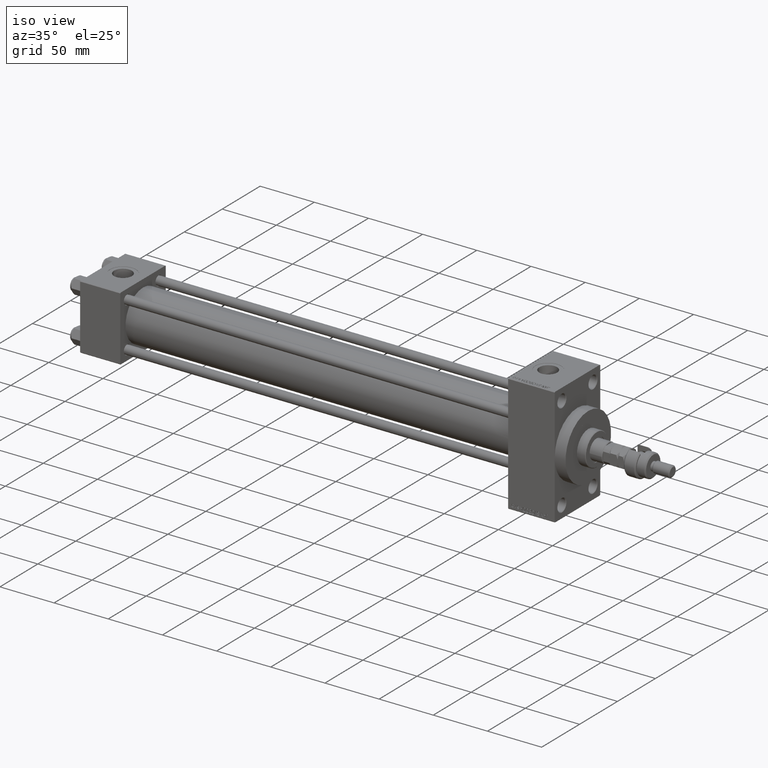
[diagram: clean part render]
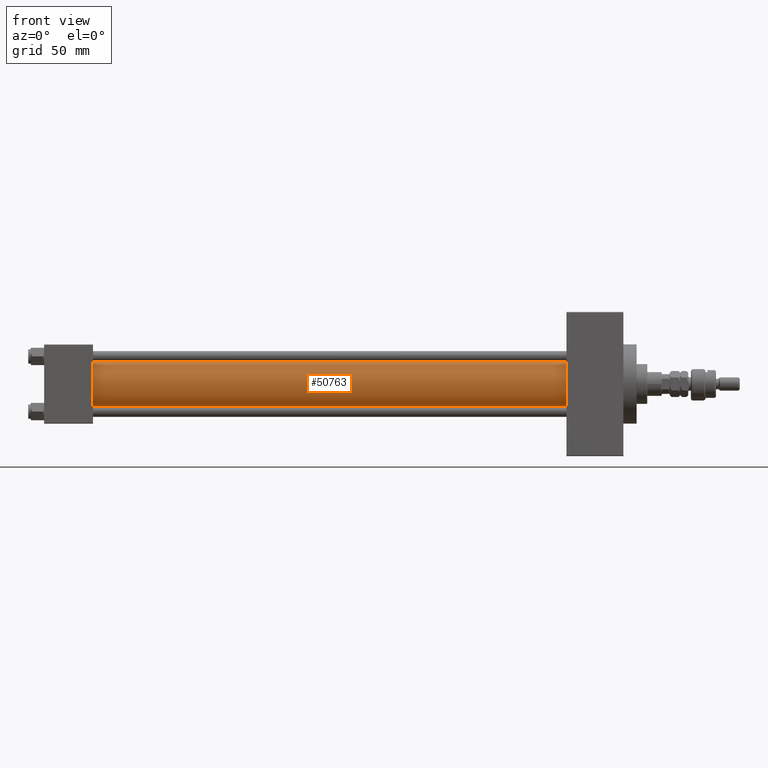
[diagram: tour spotlight — one face highlighted and labeled with its STEP entity id]
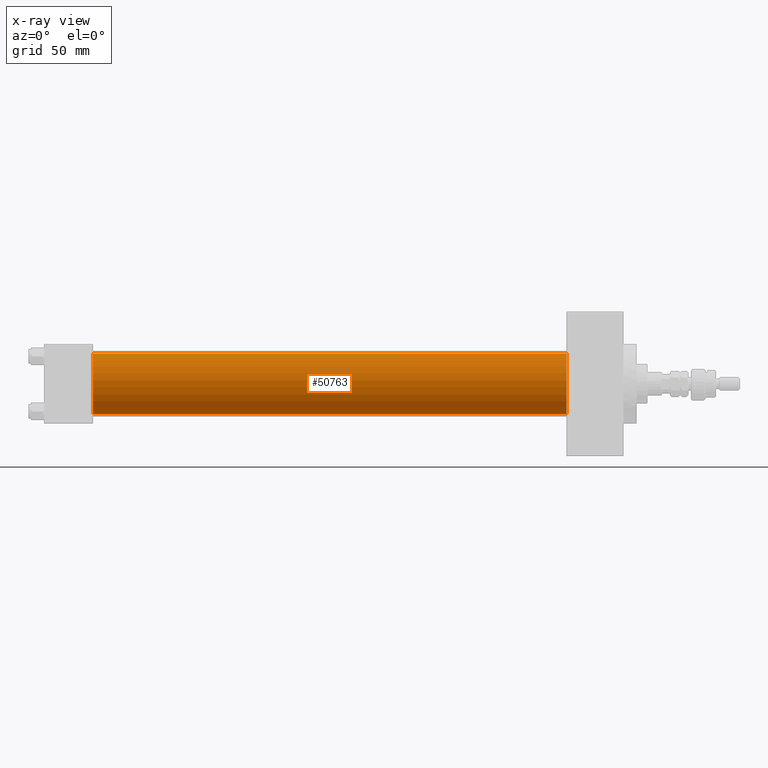
[diagram: x-ray of the same camera — body ghosted, this tour face saturated]
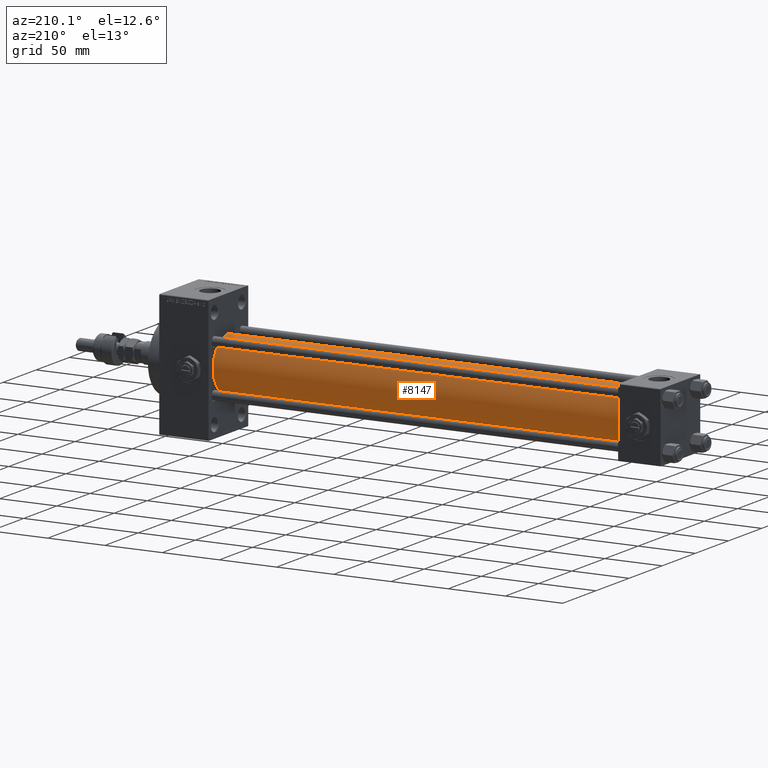
[diagram: tour spotlight — one face highlighted and labeled with its STEP entity id]
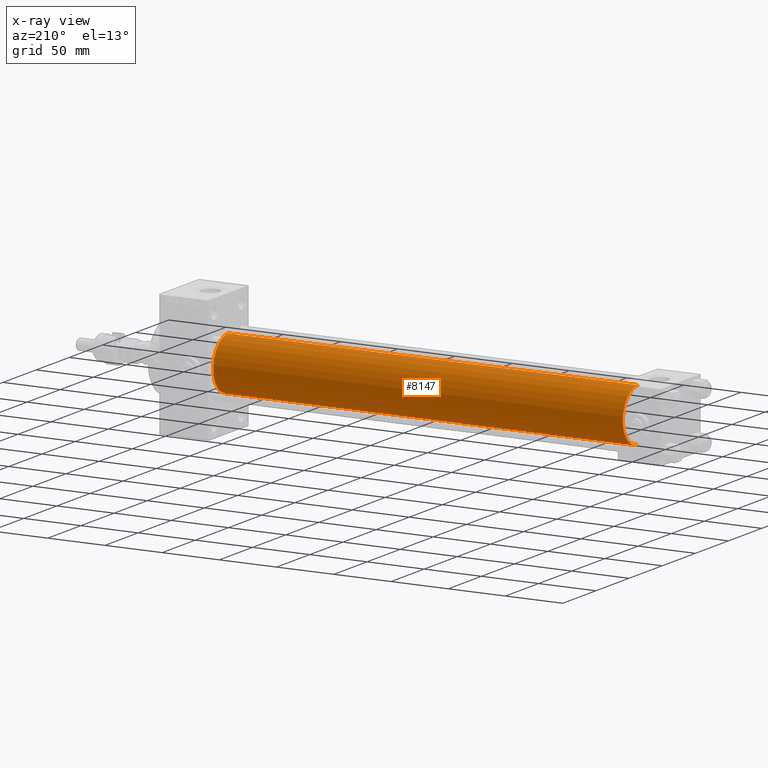
[diagram: x-ray of the same camera — body ghosted, this tour face saturated]
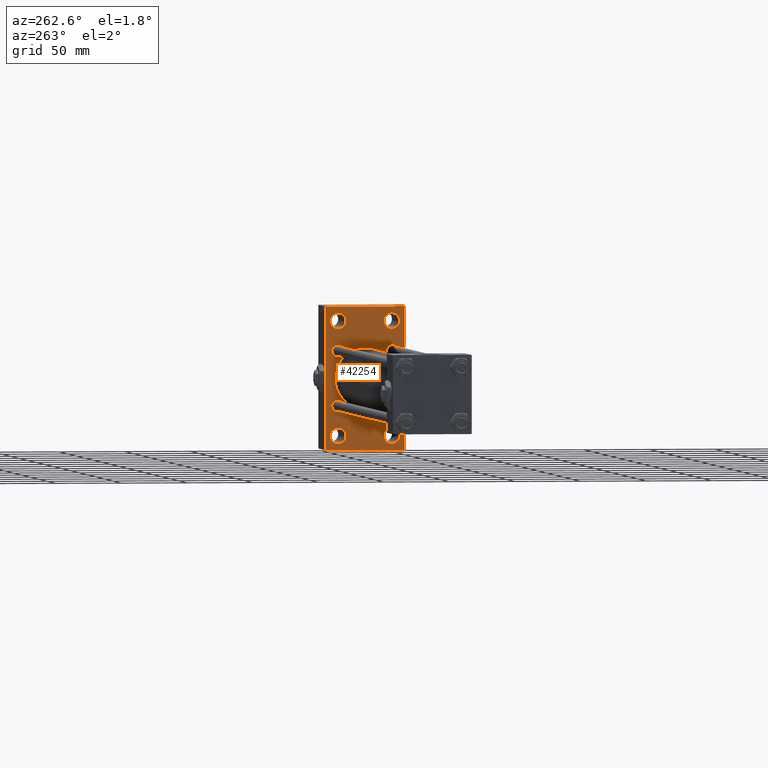
[diagram: tour spotlight — one face highlighted and labeled with its STEP entity id]
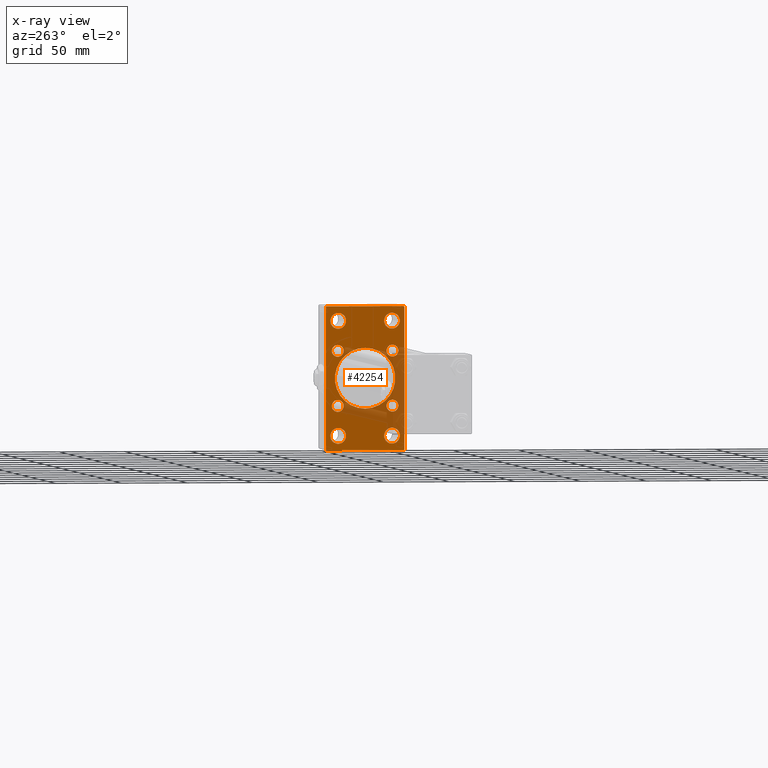
[diagram: x-ray of the same camera — body ghosted, this tour face saturated]
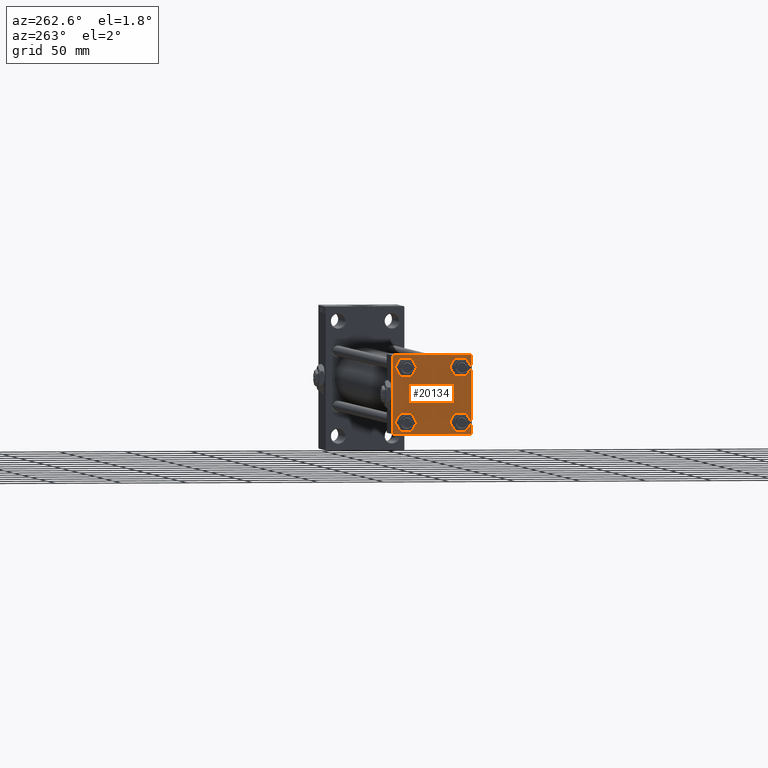
[diagram: tour spotlight — one face highlighted and labeled with its STEP entity id]
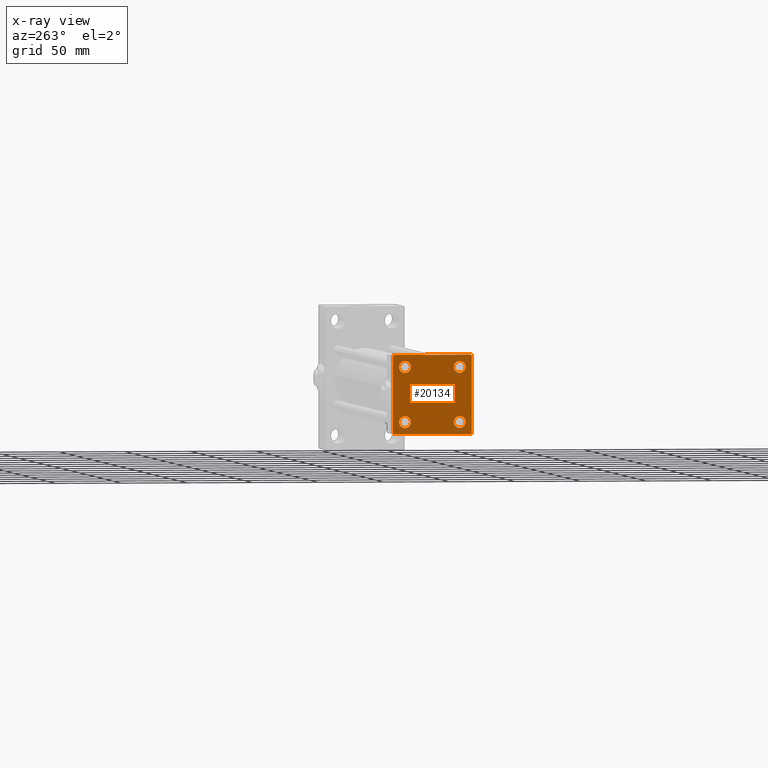
[diagram: x-ray of the same camera — body ghosted, this tour face saturated]
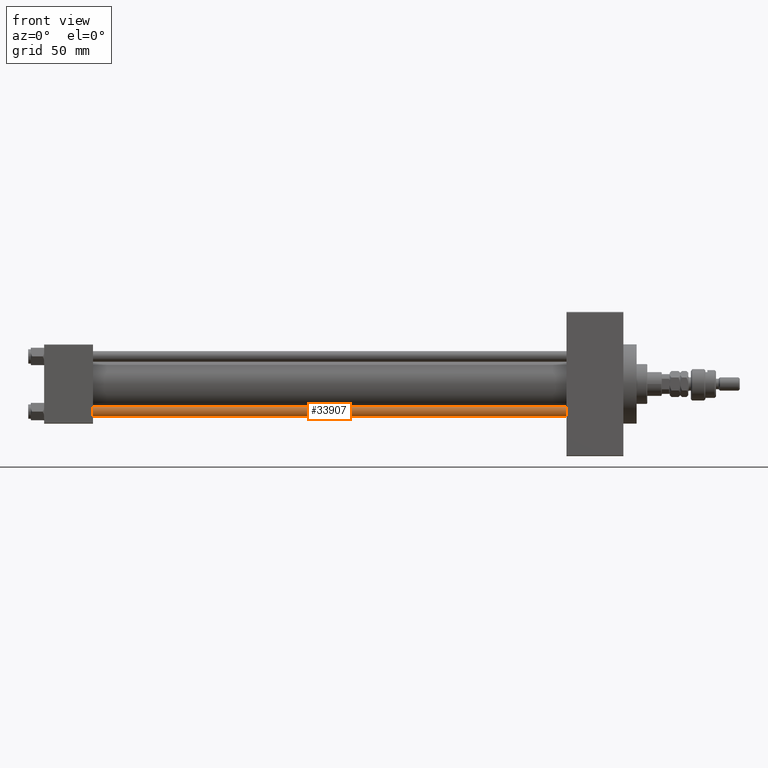
[diagram: tour spotlight — one face highlighted and labeled with its STEP entity id]
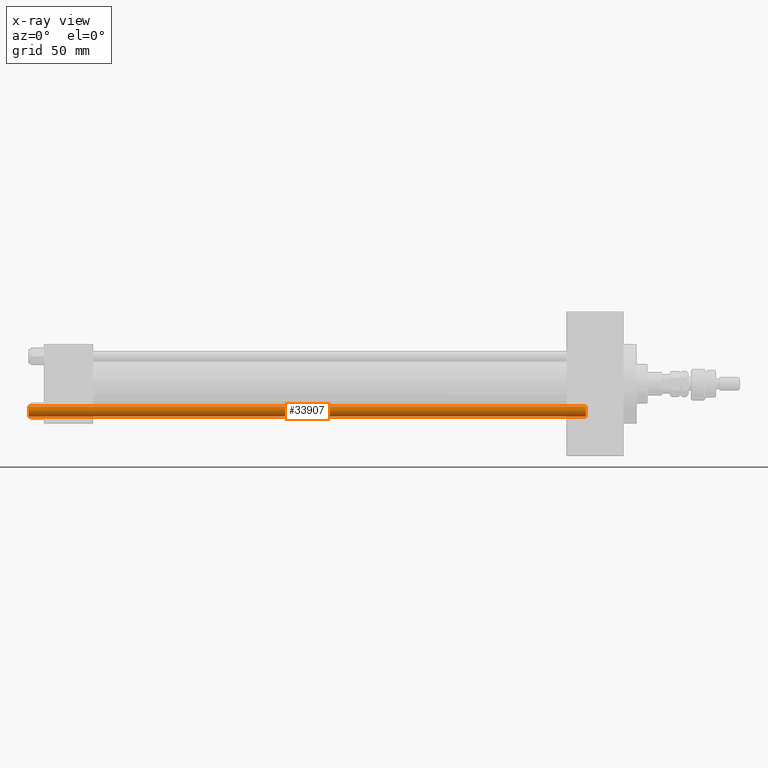
[diagram: x-ray of the same camera — body ghosted, this tour face saturated]
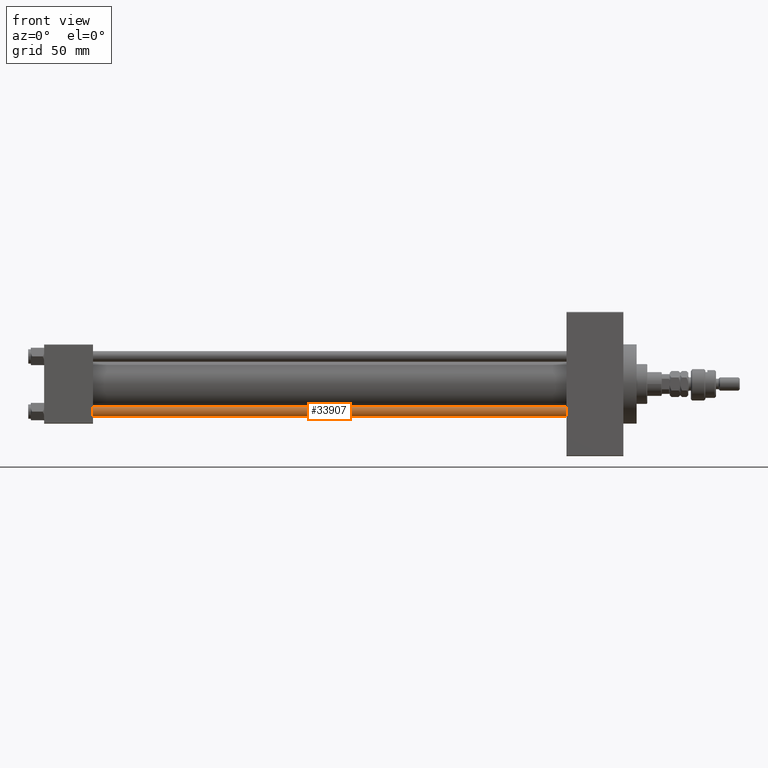
[diagram: tour spotlight — one face highlighted and labeled with its STEP entity id]
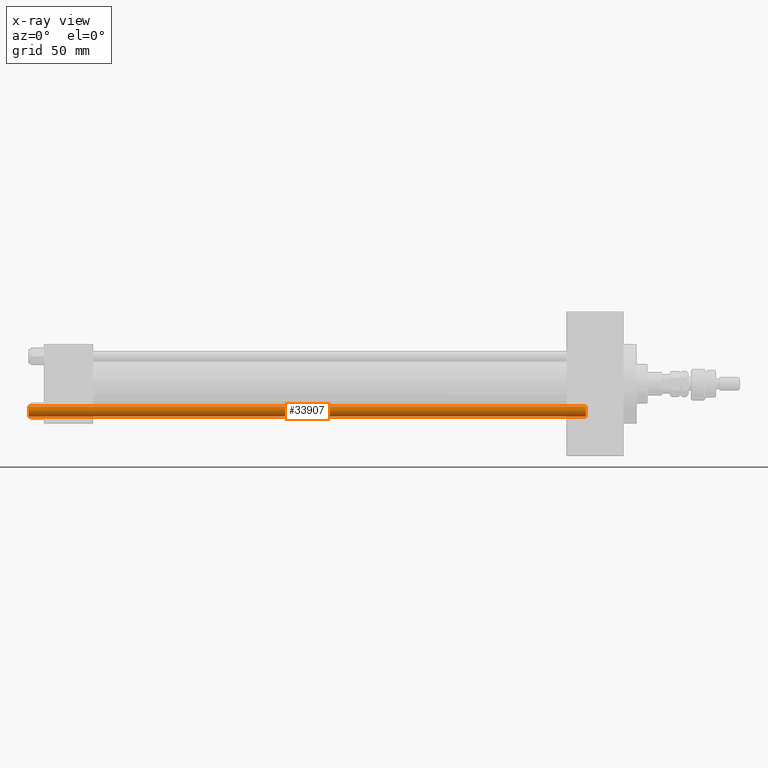
[diagram: x-ray of the same camera — body ghosted, this tour face saturated]
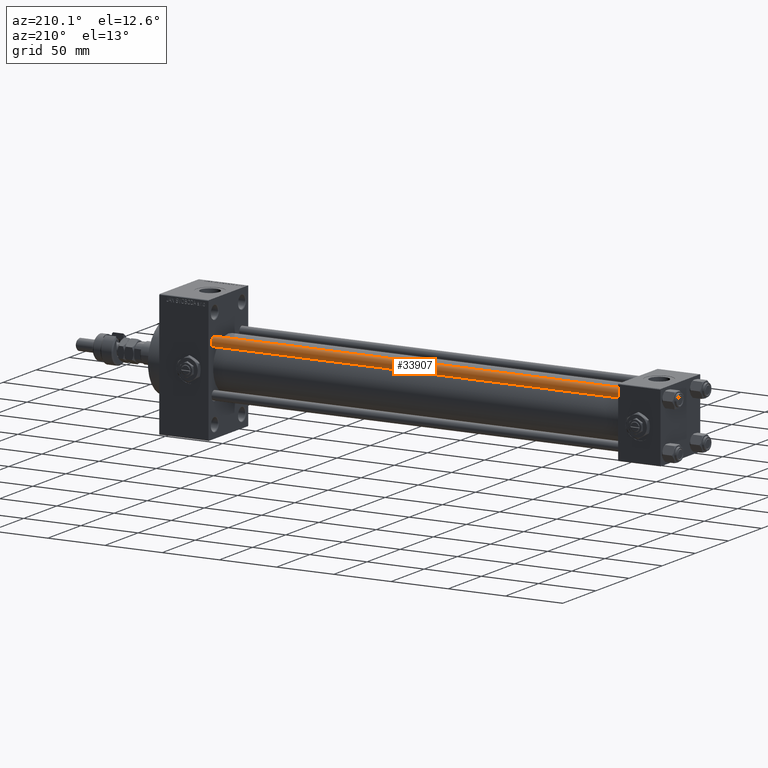
[diagram: tour spotlight — one face highlighted and labeled with its STEP entity id]
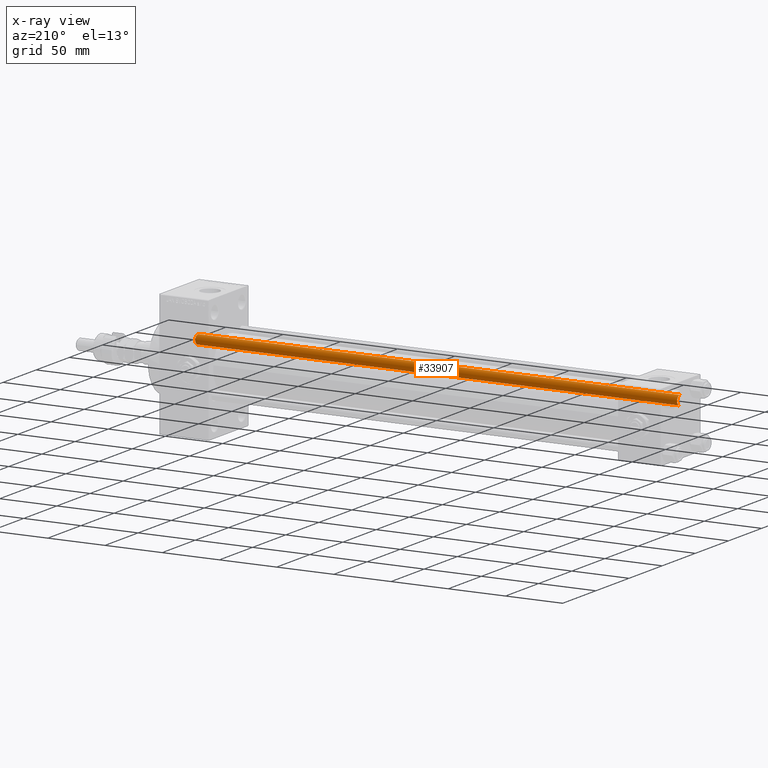
[diagram: x-ray of the same camera — body ghosted, this tour face saturated]
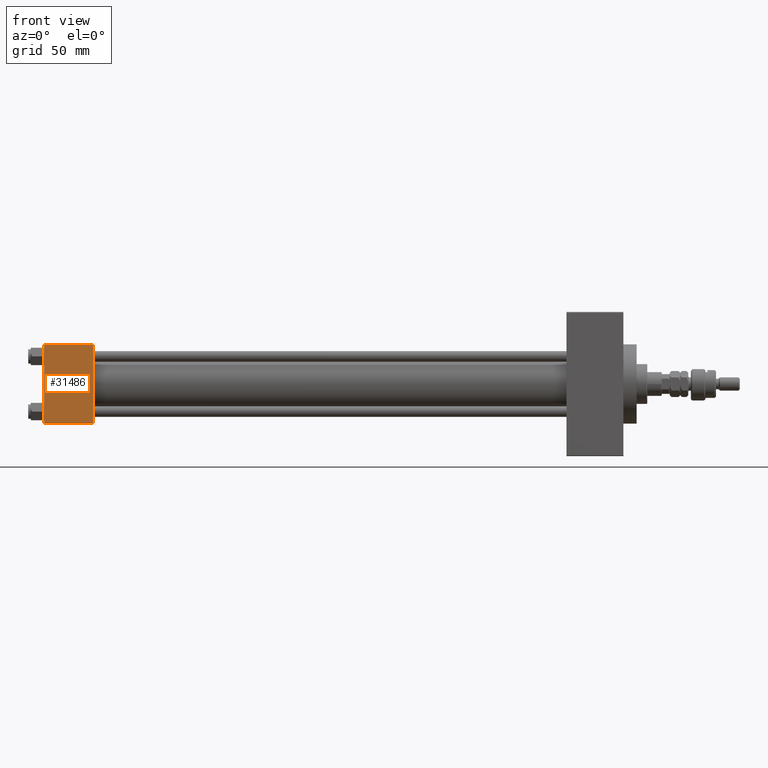
[diagram: tour spotlight — one face highlighted and labeled with its STEP entity id]
A machine part: a face-by-face anatomy tour. The part has 1290 B-rep faces; the first image is the clean iso view, then the 8 largest visible faces are spotlighted one at a time (largest first), each with its STEP entity span.

Face 1 — front view, entity #50763. An x-ray twin of the same camera follows (body ghosted, this face saturated) — the face is partly hidden behind the body. In plain terms, the highlighted cylindrical surface (edge-blend (fillet) strip) has radius 23 mm, axis along (-1, -0, -0).
Definition (entity closure, byte-faithful):
#359 = AXIS2_PLACEMENT_3D ( 'NONE', #49565, #21383, #25583 ) ;
#1550 = ORIENTED_EDGE ( 'NONE', *, *, #45900, .F. ) ;
#7936 = AXIS2_PLACEMENT_3D ( 'NONE', #30341, #18500, #42727 ) ;
#7948 = CYLINDRICAL_SURFACE ( 'NONE', #24124, 23.00000000000000000 ) ;
#8769 = ORIENTED_EDGE ( 'NONE', *, *, #34216, .T. ) ;
#10448 = CIRCLE ( 'NONE', #7936, 23.00000000000000000 ) ;
#10599 = CARTESIAN_POINT ( 'NONE',  ( 36.99999999999997868, 2.146024240737012665E-16, -23.00000000000000000 ) ) ;
#11453 = VERTEX_POINT ( 'NONE', #27664 ) ;
#11902 = DIRECTION ( 'NONE',  ( 0.000000000000000000, 0.000000000000000000, 1.000000000000000000 ) ) ;
#12415 = DIRECTION ( 'NONE',  ( -1.000000000000000000, -0.000000000000000000, -0.000000000000000000 ) ) ;
#12509 = LINE ( 'NONE', #44147, #48356 ) ;
#17965 = VERTEX_POINT ( 'NONE', #34456 ) ;
#18500 = DIRECTION ( 'NONE',  ( 1.000000000000000000, -0.000000000000000000, 0.000000000000000000 ) ) ;
#21383 = DIRECTION ( 'NONE',  ( 1.000000000000000000, 0.000000000000000000, 0.000000000000000000 ) ) ;
#23877 = CARTESIAN_POINT ( 'NONE',  ( 36.99999999999997868, -2.602085213965210642E-15, 23.00000000000000000 ) ) ;
#24124 = AXIS2_PLACEMENT_3D ( 'NONE', #48520, #12415, #11902 ) ;
#24613 = VECTOR ( 'NONE', #28214, 1000.000000000000000 ) ;
#24889 = DIRECTION ( 'NONE',  ( -1.000000000000000000, -0.000000000000000000, -0.000000000000000000 ) ) ;
#25583 = DIRECTION ( 'NONE',  ( 0.000000000000000000, 0.000000000000000000, -1.000000000000000000 ) ) ;
#27664 = CARTESIAN_POINT ( 'NONE',  ( 394.9999999999999432, 2.146024240737012665E-16, -23.00000000000000000 ) ) ;
#27694 = CARTESIAN_POINT ( 'NONE',  ( 394.9999999999999432, -2.602085213965210642E-15, 23.00000000000000000 ) ) ;
#28214 = DIRECTION ( 'NONE',  ( -1.000000000000000000, -0.000000000000000000, -0.000000000000000000 ) ) ;
#28926 = EDGE_LOOP ( 'NONE', ( #1550, #30845, #46193, #8769 ) ) ;
#28937 = CIRCLE ( 'NONE', #359, 23.00000000000000000 ) ;
#30341 = CARTESIAN_POINT ( 'NONE',  ( 36.99999999999997868, -2.602085213965210642E-15, 0.000000000000000000 ) ) ;
#30845 = ORIENTED_EDGE ( 'NONE', *, *, #41661, .F. ) ;
#31919 = FACE_OUTER_BOUND ( 'NONE', #28926, .T. ) ;
#34216 = EDGE_CURVE ( 'NONE', #49119, #36741, #10448, .T. ) ;
#34456 = CARTESIAN_POINT ( 'NONE',  ( 394.9999999999999432, -2.602085213965210642E-15, 23.00000000000000000 ) ) ;
#36741 = VERTEX_POINT ( 'NONE', #10599 ) ;
#37694 = EDGE_CURVE ( 'NONE', #17965, #49119, #51683, .T. ) ;
#41661 = EDGE_CURVE ( 'NONE', #17965, #11453, #28937, .T. ) ;
#42727 = DIRECTION ( 'NONE',  ( 0.000000000000000000, 0.000000000000000000, 1.000000000000000000 ) ) ;
#44147 = CARTESIAN_POINT ( 'NONE',  ( 394.9999999999999432, 2.146024240737012665E-16, -23.00000000000000000 ) ) ;
#45900 = EDGE_CURVE ( 'NONE', #11453, #36741, #12509, .T. ) ;
#46193 = ORIENTED_EDGE ( 'NONE', *, *, #37694, .T. ) ;
#48356 = VECTOR ( 'NONE', #24889, 1000.000000000000000 ) ;
#48520 = CARTESIAN_POINT ( 'NONE',  ( 394.9999999999999432, -2.602085213965210642E-15, 0.000000000000000000 ) ) ;
#49119 = VERTEX_POINT ( 'NONE', #23877 ) ;
#49565 = CARTESIAN_POINT ( 'NONE',  ( 394.9999999999999432, -2.602085213965210642E-15, 0.000000000000000000 ) ) ;
#50763 = ADVANCED_FACE ( 'NONE', ( #31919 ), #7948, .T. ) ;
#51683 = LINE ( 'NONE', #27694, #24613 ) ;

Face 2 — auxiliary view, entity #8147. An x-ray twin of the same camera follows (body ghosted, this face saturated) — the face is partly hidden behind the body. In plain terms, the highlighted cylindrical surface (edge-blend (fillet) strip) has radius 23 mm, axis along (-1, -0, -0).
Definition (entity closure, byte-faithful):
#1135 = CIRCLE ( 'NONE', #40669, 23.00000000000000000 ) ;
#3720 = ORIENTED_EDGE ( 'NONE', *, *, #43227, .T. ) ;
#5428 = AXIS2_PLACEMENT_3D ( 'NONE', #31041, #43955, #11554 ) ;
#8147 = ADVANCED_FACE ( 'NONE', ( #44563 ), #47763, .T. ) ;
#10599 = CARTESIAN_POINT ( 'NONE',  ( 36.99999999999997868, 2.146024240737012665E-16, -23.00000000000000000 ) ) ;
#11453 = VERTEX_POINT ( 'NONE', #27664 ) ;
#11554 = DIRECTION ( 'NONE',  ( 0.000000000000000000, 0.000000000000000000, -1.000000000000000000 ) ) ;
#11987 = ORIENTED_EDGE ( 'NONE', *, *, #45571, .F. ) ;
#12427 = DIRECTION ( 'NONE',  ( -1.000000000000000000, -0.000000000000000000, -0.000000000000000000 ) ) ;
#12509 = LINE ( 'NONE', #44147, #48356 ) ;
#13475 = DIRECTION ( 'NONE',  ( 0.000000000000000000, 0.000000000000000000, 1.000000000000000000 ) ) ;
#15694 = AXIS2_PLACEMENT_3D ( 'NONE', #31410, #12427, #36401 ) ;
#17965 = VERTEX_POINT ( 'NONE', #34456 ) ;
#18653 = EDGE_LOOP ( 'NONE', ( #11987, #21517, #3720, #44730 ) ) ;
#21517 = ORIENTED_EDGE ( 'NONE', *, *, #45900, .T. ) ;
#23877 = CARTESIAN_POINT ( 'NONE',  ( 36.99999999999997868, -2.602085213965210642E-15, 23.00000000000000000 ) ) ;
#24613 = VECTOR ( 'NONE', #28214, 1000.000000000000000 ) ;
#24889 = DIRECTION ( 'NONE',  ( -1.000000000000000000, -0.000000000000000000, -0.000000000000000000 ) ) ;
#27664 = CARTESIAN_POINT ( 'NONE',  ( 394.9999999999999432, 2.146024240737012665E-16, -23.00000000000000000 ) ) ;
#27694 = CARTESIAN_POINT ( 'NONE',  ( 394.9999999999999432, -2.602085213965210642E-15, 23.00000000000000000 ) ) ;
#28159 = CIRCLE ( 'NONE', #5428, 23.00000000000000000 ) ;
#28214 = DIRECTION ( 'NONE',  ( -1.000000000000000000, -0.000000000000000000, -0.000000000000000000 ) ) ;
#29023 = DIRECTION ( 'NONE',  ( 1.000000000000000000, -0.000000000000000000, 0.000000000000000000 ) ) ;
#31041 = CARTESIAN_POINT ( 'NONE',  ( 394.9999999999999432, -2.602085213965210642E-15, 0.000000000000000000 ) ) ;
#31410 = CARTESIAN_POINT ( 'NONE',  ( 394.9999999999999432, -2.602085213965210642E-15, 0.000000000000000000 ) ) ;
#34456 = CARTESIAN_POINT ( 'NONE',  ( 394.9999999999999432, -2.602085213965210642E-15, 23.00000000000000000 ) ) ;
#36401 = DIRECTION ( 'NONE',  ( 0.000000000000000000, 0.000000000000000000, 1.000000000000000000 ) ) ;
#36741 = VERTEX_POINT ( 'NONE', #10599 ) ;
#37198 = CARTESIAN_POINT ( 'NONE',  ( 36.99999999999997868, -2.602085213965210642E-15, 0.000000000000000000 ) ) ;
#37694 = EDGE_CURVE ( 'NONE', #17965, #49119, #51683, .T. ) ;
#40669 = AXIS2_PLACEMENT_3D ( 'NONE', #37198, #29023, #13475 ) ;
#43227 = EDGE_CURVE ( 'NONE', #36741, #49119, #1135, .T. ) ;
#43955 = DIRECTION ( 'NONE',  ( 1.000000000000000000, 0.000000000000000000, 0.000000000000000000 ) ) ;
#44147 = CARTESIAN_POINT ( 'NONE',  ( 394.9999999999999432, 2.146024240737012665E-16, -23.00000000000000000 ) ) ;
#44563 = FACE_OUTER_BOUND ( 'NONE', #18653, .T. ) ;
#44730 = ORIENTED_EDGE ( 'NONE', *, *, #37694, .F. ) ;
#45571 = EDGE_CURVE ( 'NONE', #11453, #17965, #28159, .T. ) ;
#45900 = EDGE_CURVE ( 'NONE', #11453, #36741, #12509, .T. ) ;
#47763 = CYLINDRICAL_SURFACE ( 'NONE', #15694, 23.00000000000000000 ) ;
#48356 = VECTOR ( 'NONE', #24889, 1000.000000000000000 ) ;
#49119 = VERTEX_POINT ( 'NONE', #23877 ) ;
#51683 = LINE ( 'NONE', #27694, #24613 ) ;

Face 3 — auxiliary view, entity #42254. An x-ray twin of the same camera follows (body ghosted, this face saturated) — the face is partly hidden behind the body. In plain terms, the highlighted planar face has unit normal (-1, 0, 0).
Definition (entity closure, byte-faithful):
#5 = DIRECTION ( 'NONE',  ( 1.000000000000000000, -0.000000000000000000, 0.000000000000000000 ) ) ;
#121 = VERTEX_POINT ( 'NONE', #6025 ) ;
#359 = AXIS2_PLACEMENT_3D ( 'NONE', #49565, #21383, #25583 ) ;
#387 = FACE_OUTER_BOUND ( 'NONE', #14384, .T. ) ;
#465 = CARTESIAN_POINT ( 'NONE',  ( 394.9999999999999432, 29.99999999999999645, 54.49999999999999289 ) ) ;
#557 = EDGE_CURVE ( 'NONE', #18295, #35482, #13692, .T. ) ;
#642 = FACE_BOUND ( 'NONE', #35192, .T. ) ;
#807 = CARTESIAN_POINT ( 'NONE',  ( 394.9999999999999432, 29.50000000000004974, -54.49999999999999289 ) ) ;
#893 = CIRCLE ( 'NONE', #30345, 4.500000000000007105 ) ;
#1177 = DIRECTION ( 'NONE',  ( -0.000000000000000000, 0.7071067811865058284, 0.7071067811865892061 ) ) ;
#1377 = AXIS2_PLACEMENT_3D ( 'NONE', #10452, #35736, #27042 ) ;
#1674 = CARTESIAN_POINT ( 'NONE',  ( 394.9999999999999432, 42.00000000000001421, 42.00000000000001421 ) ) ;
#1730 = ORIENTED_EDGE ( 'NONE', *, *, #23264, .T. ) ;
#1733 = DIRECTION ( 'NONE',  ( 0.000000000000000000, -0.7071067811865352493, 0.7071067811865597852 ) ) ;
#1870 = VERTEX_POINT ( 'NONE', #26396 ) ;
#2067 = EDGE_LOOP ( 'NONE', ( #41802, #11486 ) ) ;
#2622 = CARTESIAN_POINT ( 'NONE',  ( 394.9999999999999432, -30.00000000000000000, -53.99999999999992895 ) ) ;
#2990 = DIRECTION ( 'NONE',  ( 1.000000000000000000, -0.000000000000000000, 0.000000000000000000 ) ) ;
#3261 = DIRECTION ( 'NONE',  ( 0.000000000000000000, 0.000000000000000000, 1.000000000000000000 ) ) ;
#3807 = EDGE_LOOP ( 'NONE', ( #1730, #43683 ) ) ;
#3986 = ORIENTED_EDGE ( 'NONE', *, *, #26926, .T. ) ;
#4127 = DIRECTION ( 'NONE',  ( 1.000000000000000000, -0.000000000000000000, 0.000000000000000000 ) ) ;
#5428 = AXIS2_PLACEMENT_3D ( 'NONE', #31041, #43955, #11554 ) ;
#5539 = DIRECTION ( 'NONE',  ( 0.000000000000000000, 0.000000000000000000, 1.000000000000000000 ) ) ;
#6025 = CARTESIAN_POINT ( 'NONE',  ( 394.9999999999999432, -29.50000000000005684, 54.50000000000000000 ) ) ;
#6233 = CARTESIAN_POINT ( 'NONE',  ( 394.9999999999999432, -20.50000000000000000, 37.49999999999987921 ) ) ;
#6506 = EDGE_CURVE ( 'NONE', #48005, #24879, #44098, .T. ) ;
#6739 = CARTESIAN_POINT ( 'NONE',  ( 394.9999999999999432, -20.50000000000000000, 49.50000000000011369 ) ) ;
#7288 = CARTESIAN_POINT ( 'NONE',  ( 394.9999999999999432, 20.50000000000000000, -43.50000000000000000 ) ) ;
#7599 = AXIS2_PLACEMENT_3D ( 'NONE', #51185, #15090, #44313 ) ;
#7682 = VERTEX_POINT ( 'NONE', #46524 ) ;
#8288 = FACE_BOUND ( 'NONE', #11784, .T. ) ;
#8487 = ORIENTED_EDGE ( 'NONE', *, *, #45763, .F. ) ;
#8536 = EDGE_CURVE ( 'NONE', #44566, #28565, #32640, .T. ) ;
#8537 = CARTESIAN_POINT ( 'NONE',  ( 394.9999999999999432, 0.000000000000000000, 0.000000000000000000 ) ) ;
#8611 = DIRECTION ( 'NONE',  ( 0.000000000000000000, 0.000000000000000000, -1.000000000000000000 ) ) ;
#8800 = FACE_BOUND ( 'NONE', #30277, .T. ) ;
#9106 = EDGE_CURVE ( 'NONE', #48231, #31482, #16543, .T. ) ;
#9353 = CARTESIAN_POINT ( 'NONE',  ( 394.9999999999999432, -20.50000000000000000, -43.50000000000000000 ) ) ;
#9412 = EDGE_CURVE ( 'NONE', #27033, #121, #37538, .T. ) ;
#10142 = EDGE_LOOP ( 'NONE', ( #3986, #47720 ) ) ;
#10452 = CARTESIAN_POINT ( 'NONE',  ( 394.9999999999999432, -20.50000000000000000, 43.50000000000000000 ) ) ;
#10499 = DIRECTION ( 'NONE',  ( 1.000000000000000000, -0.000000000000000000, 0.000000000000000000 ) ) ;
#10522 = DIRECTION ( 'NONE',  ( 0.000000000000000000, 0.000000000000000000, 1.000000000000000000 ) ) ;
#10712 = EDGE_CURVE ( 'NONE', #7682, #13340, #19062, .T. ) ;
#10994 = CARTESIAN_POINT ( 'NONE',  ( 394.9999999999999432, 20.50000000000000000, 43.50000000000000000 ) ) ;
#11059 = CARTESIAN_POINT ( 'NONE',  ( 394.9999999999999432, 29.99999999999999645, -53.99999999999999289 ) ) ;
#11231 = DIRECTION ( 'NONE',  ( 0.000000000000000000, 0.000000000000000000, 1.000000000000000000 ) ) ;
#11416 = DIRECTION ( 'NONE',  ( 0.000000000000000000, 0.000000000000000000, 1.000000000000000000 ) ) ;
#11453 = VERTEX_POINT ( 'NONE', #27664 ) ;
#11486 = ORIENTED_EDGE ( 'NONE', *, *, #45571, .T. ) ;
#11554 = DIRECTION ( 'NONE',  ( 0.000000000000000000, 0.000000000000000000, -1.000000000000000000 ) ) ;
#11784 = EDGE_LOOP ( 'NONE', ( #40349, #23308 ) ) ;
#11977 = ORIENTED_EDGE ( 'NONE', *, *, #9412, .T. ) ;
#13092 = CARTESIAN_POINT ( 'NONE',  ( 394.9999999999999432, 29.99999999999999645, 54.49999999999999289 ) ) ;
#13195 = VERTEX_POINT ( 'NONE', #30133 ) ;
#13340 = VERTEX_POINT ( 'NONE', #20615 ) ;
#13692 = CIRCLE ( 'NONE', #15414, 4.500000000000007105 ) ;
#13816 = CARTESIAN_POINT ( 'NONE',  ( 394.9999999999999432, -42.00000000000176215, 41.99999999999681677 ) ) ;
#14384 = EDGE_LOOP ( 'NONE', ( #41513, #27556, #8487, #11977, #24925, #36801, #19391, #37269 ) ) ;
#14538 = EDGE_CURVE ( 'NONE', #44651, #25076, #46852, .T. ) ;
#15090 = DIRECTION ( 'NONE',  ( 1.000000000000000000, -0.000000000000000000, 0.000000000000000000 ) ) ;
#15106 = CARTESIAN_POINT ( 'NONE',  ( 394.9999999999999432, -30.00000000000000000, 54.00000000000000000 ) ) ;
#15263 = DIRECTION ( 'NONE',  ( 1.000000000000000000, -0.000000000000000000, 0.000000000000000000 ) ) ;
#15320 = VERTEX_POINT ( 'NONE', #11059 ) ;
#15414 = AXIS2_PLACEMENT_3D ( 'NONE', #27487, #15646, #3261 ) ;
#15631 = CARTESIAN_POINT ( 'NONE',  ( 394.9999999999999432, 20.50000000000000000, -43.50000000000000000 ) ) ;
#15646 = DIRECTION ( 'NONE',  ( 1.000000000000000000, -0.000000000000000000, 0.000000000000000000 ) ) ;
#16037 = CARTESIAN_POINT ( 'NONE',  ( 394.9999999999999432, -29.49999999999994671, -54.50000000000000000 ) ) ;
#16068 = AXIS2_PLACEMENT_3D ( 'NONE', #44964, #16777, #21516 ) ;
#16198 = PLANE ( 'NONE',  #35605 ) ;
#16245 = CARTESIAN_POINT ( 'NONE',  ( 394.9999999999999432, -20.84999999999999076, 20.85000000000000497 ) ) ;
#16279 = EDGE_CURVE ( 'NONE', #15320, #21634, #19186, .T. ) ;
#16291 = VECTOR ( 'NONE', #29166, 1000.000000000000000 ) ;
#16543 = CIRCLE ( 'NONE', #1377, 6.000000000000116351 ) ;
#16777 = DIRECTION ( 'NONE',  ( 1.000000000000000000, -0.000000000000000000, 0.000000000000000000 ) ) ;
#16822 = AXIS2_PLACEMENT_3D ( 'NONE', #51621, #15263, #10522 ) ;
#17361 = ORIENTED_EDGE ( 'NONE', *, *, #10712, .T. ) ;
#17661 = CARTESIAN_POINT ( 'NONE',  ( 394.9999999999999432, 20.84999999999999787, -20.85000000000000142 ) ) ;
#17965 = VERTEX_POINT ( 'NONE', #34456 ) ;
#18169 = ORIENTED_EDGE ( 'NONE', *, *, #21669, .T. ) ;
#18295 = VERTEX_POINT ( 'NONE', #45480 ) ;
#18917 = VECTOR ( 'NONE', #50240, 1000.000000000000000 ) ;
#19062 = CIRCLE ( 'NONE', #48505, 4.500000000000007105 ) ;
#19186 = LINE ( 'NONE', #43925, #23380 ) ;
#19391 = ORIENTED_EDGE ( 'NONE', *, *, #45695, .T. ) ;
#19713 = VECTOR ( 'NONE', #44700, 1000.000000000000000 ) ;
#20231 = CARTESIAN_POINT ( 'NONE',  ( 394.9999999999999432, 29.99999999999999645, -54.49999999999999289 ) ) ;
#20418 = FACE_BOUND ( 'NONE', #36446, .T. ) ;
#20615 = CARTESIAN_POINT ( 'NONE',  ( 394.9999999999999432, -20.84999999999999076, 16.34999999999999787 ) ) ;
#20616 = VECTOR ( 'NONE', #1177, 1000.000000000000000 ) ;
#20725 = EDGE_CURVE ( 'NONE', #30299, #1870, #27762, .T. ) ;
#20883 = CARTESIAN_POINT ( 'NONE',  ( 394.9999999999999432, 29.99999999999999645, 54.00000000000004974 ) ) ;
#21104 = CARTESIAN_POINT ( 'NONE',  ( 394.9999999999999432, -20.84999999999999076, 20.85000000000000497 ) ) ;
#21383 = DIRECTION ( 'NONE',  ( 1.000000000000000000, 0.000000000000000000, 0.000000000000000000 ) ) ;
#21516 = DIRECTION ( 'NONE',  ( 0.000000000000000000, 0.000000000000000000, 1.000000000000000000 ) ) ;
#21595 = AXIS2_PLACEMENT_3D ( 'NONE', #7288, #23370, #39437 ) ;
#21634 = VERTEX_POINT ( 'NONE', #807 ) ;
#21669 = EDGE_CURVE ( 'NONE', #37246, #13195, #28612, .T. ) ;
#21706 = EDGE_CURVE ( 'NONE', #13340, #7682, #47138, .T. ) ;
#22044 = ORIENTED_EDGE ( 'NONE', *, *, #27084, .T. ) ;
#22267 = DIRECTION ( 'NONE',  ( 1.000000000000000000, -0.000000000000000000, 0.000000000000000000 ) ) ;
#22414 = VECTOR ( 'NONE', #1733, 1000.000000000000000 ) ;
#22528 = EDGE_CURVE ( 'NONE', #29936, #32009, #50163, .T. ) ;
#23116 = CARTESIAN_POINT ( 'NONE',  ( 394.9999999999999432, -20.50000000000000000, -43.50000000000000000 ) ) ;
#23264 = EDGE_CURVE ( 'NONE', #24879, #48005, #26862, .T. ) ;
#23308 = ORIENTED_EDGE ( 'NONE', *, *, #557, .T. ) ;
#23370 = DIRECTION ( 'NONE',  ( 1.000000000000000000, -0.000000000000000000, 0.000000000000000000 ) ) ;
#23380 = VECTOR ( 'NONE', #27596, 1000.000000000000000 ) ;
#23513 = VECTOR ( 'NONE', #50418, 1000.000000000000114 ) ;
#24834 = AXIS2_PLACEMENT_3D ( 'NONE', #35207, #30461, #11231 ) ;
#24879 = VERTEX_POINT ( 'NONE', #37871 ) ;
#24925 = ORIENTED_EDGE ( 'NONE', *, *, #32323, .F. ) ;
#25076 = VERTEX_POINT ( 'NONE', #25117 ) ;
#25117 = CARTESIAN_POINT ( 'NONE',  ( 394.9999999999999432, 20.50000000000000000, -37.49999999999987921 ) ) ;
#25195 = EDGE_CURVE ( 'NONE', #35482, #18295, #28610, .T. ) ;
#25583 = DIRECTION ( 'NONE',  ( 0.000000000000000000, 0.000000000000000000, -1.000000000000000000 ) ) ;
#26022 = AXIS2_PLACEMENT_3D ( 'NONE', #47127, #10499, #26574 ) ;
#26041 = ORIENTED_EDGE ( 'NONE', *, *, #21706, .T. ) ;
#26273 = VERTEX_POINT ( 'NONE', #28244 ) ;
#26396 = CARTESIAN_POINT ( 'NONE',  ( 394.9999999999999432, -20.84999999999999076, -16.34999999999999787 ) ) ;
#26572 = EDGE_CURVE ( 'NONE', #13195, #37246, #893, .T. ) ;
#26574 = DIRECTION ( 'NONE',  ( 0.000000000000000000, 0.000000000000000000, 1.000000000000000000 ) ) ;
#26862 = CIRCLE ( 'NONE', #26022, 6.000000000000116351 ) ;
#26926 = EDGE_CURVE ( 'NONE', #31482, #48231, #41330, .T. ) ;
#27033 = VERTEX_POINT ( 'NONE', #15106 ) ;
#27042 = DIRECTION ( 'NONE',  ( 0.000000000000000000, 0.000000000000000000, 1.000000000000000000 ) ) ;
#27084 = EDGE_CURVE ( 'NONE', #25076, #44651, #50590, .T. ) ;
#27487 = CARTESIAN_POINT ( 'NONE',  ( 394.9999999999999432, 20.84999999999999787, 20.85000000000000142 ) ) ;
#27556 = ORIENTED_EDGE ( 'NONE', *, *, #8536, .T. ) ;
#27596 = DIRECTION ( 'NONE',  ( -0.000000000000000000, -0.7071067811865081598, -0.7071067811865868746 ) ) ;
#27664 = CARTESIAN_POINT ( 'NONE',  ( 394.9999999999999432, 2.146024240737012665E-16, -23.00000000000000000 ) ) ;
#27762 = CIRCLE ( 'NONE', #16822, 4.500000000000007105 ) ;
#27846 = DIRECTION ( 'NONE',  ( 0.000000000000000000, 0.000000000000000000, 1.000000000000000000 ) ) ;
#28159 = CIRCLE ( 'NONE', #5428, 23.00000000000000000 ) ;
#28244 = CARTESIAN_POINT ( 'NONE',  ( 394.9999999999999432, -20.50000000000000000, -37.49999999999987921 ) ) ;
#28565 = VERTEX_POINT ( 'NONE', #2622 ) ;
#28610 = CIRCLE ( 'NONE', #7599, 4.500000000000007105 ) ;
#28612 = CIRCLE ( 'NONE', #37051, 4.500000000000007105 ) ;
#28937 = CIRCLE ( 'NONE', #359, 23.00000000000000000 ) ;
#29166 = DIRECTION ( 'NONE',  ( 0.000000000000000000, -1.000000000000000000, 1.156482317317871478E-16 ) ) ;
#29423 = EDGE_CURVE ( 'NONE', #26273, #47493, #48155, .T. ) ;
#29684 = AXIS2_PLACEMENT_3D ( 'NONE', #23116, #44177, #27846 ) ;
#29936 = VERTEX_POINT ( 'NONE', #48717 ) ;
#30133 = CARTESIAN_POINT ( 'NONE',  ( 394.9999999999999432, 20.84999999999999787, -25.35000000000000853 ) ) ;
#30277 = EDGE_LOOP ( 'NONE', ( #17361, #26041 ) ) ;
#30299 = VERTEX_POINT ( 'NONE', #36530 ) ;
#30345 = AXIS2_PLACEMENT_3D ( 'NONE', #51916, #5, #47967 ) ;
#30461 = DIRECTION ( 'NONE',  ( 1.000000000000000000, -0.000000000000000000, 0.000000000000000000 ) ) ;
#31041 = CARTESIAN_POINT ( 'NONE',  ( 394.9999999999999432, -2.602085213965210642E-15, 0.000000000000000000 ) ) ;
#31217 = ORIENTED_EDGE ( 'NONE', *, *, #48154, .T. ) ;
#31482 = VERTEX_POINT ( 'NONE', #6739 ) ;
#32009 = VERTEX_POINT ( 'NONE', #20883 ) ;
#32323 = EDGE_CURVE ( 'NONE', #29936, #121, #48683, .T. ) ;
#32513 = DIRECTION ( 'NONE',  ( -1.000000000000000000, 0.000000000000000000, -0.000000000000000000 ) ) ;
#32640 = LINE ( 'NONE', #33863, #22414 ) ;
#32893 = ORIENTED_EDGE ( 'NONE', *, *, #14538, .T. ) ;
#33016 = CIRCLE ( 'NONE', #29684, 6.000000000000116351 ) ;
#33863 = CARTESIAN_POINT ( 'NONE',  ( 394.9999999999999432, -42.00000000000048317, -41.99999999999902656 ) ) ;
#34133 = ORIENTED_EDGE ( 'NONE', *, *, #20725, .T. ) ;
#34147 = CARTESIAN_POINT ( 'NONE',  ( 394.9999999999999432, -30.00000000000000000, 54.50000000000000000 ) ) ;
#34225 = EDGE_LOOP ( 'NONE', ( #22044, #32893 ) ) ;
#34456 = CARTESIAN_POINT ( 'NONE',  ( 394.9999999999999432, -2.602085213965210642E-15, 23.00000000000000000 ) ) ;
#34714 = ORIENTED_EDGE ( 'NONE', *, *, #39180, .T. ) ;
#35192 = EDGE_LOOP ( 'NONE', ( #51596, #34714 ) ) ;
#35207 = CARTESIAN_POINT ( 'NONE',  ( 394.9999999999999432, -20.84999999999999076, -20.85000000000000497 ) ) ;
#35482 = VERTEX_POINT ( 'NONE', #47019 ) ;
#35605 = AXIS2_PLACEMENT_3D ( 'NONE', #8537, #32513, #48598 ) ;
#35736 = DIRECTION ( 'NONE',  ( 1.000000000000000000, -0.000000000000000000, 0.000000000000000000 ) ) ;
#36224 = FACE_BOUND ( 'NONE', #10142, .T. ) ;
#36446 = EDGE_LOOP ( 'NONE', ( #31217, #34133 ) ) ;
#36530 = CARTESIAN_POINT ( 'NONE',  ( 394.9999999999999432, -20.84999999999999076, -25.35000000000001208 ) ) ;
#36534 = AXIS2_PLACEMENT_3D ( 'NONE', #10994, #50520, #43392 ) ;
#36563 = LINE ( 'NONE', #465, #40748 ) ;
#36801 = ORIENTED_EDGE ( 'NONE', *, *, #22528, .T. ) ;
#37051 = AXIS2_PLACEMENT_3D ( 'NONE', #17661, #39184, #46374 ) ;
#37246 = VERTEX_POINT ( 'NONE', #49728 ) ;
#37269 = ORIENTED_EDGE ( 'NONE', *, *, #16279, .T. ) ;
#37350 = CARTESIAN_POINT ( 'NONE',  ( 394.9999999999999432, 20.50000000000000000, -49.50000000000011369 ) ) ;
#37538 = LINE ( 'NONE', #13816, #20616 ) ;
#37596 = LINE ( 'NONE', #34147, #18917 ) ;
#37871 = CARTESIAN_POINT ( 'NONE',  ( 394.9999999999999432, 20.50000000000000000, 49.50000000000011369 ) ) ;
#38057 = AXIS2_PLACEMENT_3D ( 'NONE', #9353, #22267, #38337 ) ;
#38337 = DIRECTION ( 'NONE',  ( 0.000000000000000000, 0.000000000000000000, 1.000000000000000000 ) ) ;
#39180 = EDGE_CURVE ( 'NONE', #47493, #26273, #33016, .T. ) ;
#39184 = DIRECTION ( 'NONE',  ( 1.000000000000000000, -0.000000000000000000, 0.000000000000000000 ) ) ;
#39437 = DIRECTION ( 'NONE',  ( 0.000000000000000000, 0.000000000000000000, 1.000000000000000000 ) ) ;
#39563 = CARTESIAN_POINT ( 'NONE',  ( 394.9999999999999432, 20.50000000000000000, 37.49999999999987921 ) ) ;
#39921 = FACE_BOUND ( 'NONE', #3807, .T. ) ;
#40349 = ORIENTED_EDGE ( 'NONE', *, *, #25195, .T. ) ;
#40748 = VECTOR ( 'NONE', #8611, 1000.000000000000000 ) ;
#41119 = DIRECTION ( 'NONE',  ( 1.000000000000000000, -0.000000000000000000, 0.000000000000000000 ) ) ;
#41330 = CIRCLE ( 'NONE', #16068, 6.000000000000116351 ) ;
#41513 = ORIENTED_EDGE ( 'NONE', *, *, #41966, .T. ) ;
#41661 = EDGE_CURVE ( 'NONE', #17965, #11453, #28937, .T. ) ;
#41802 = ORIENTED_EDGE ( 'NONE', *, *, #41661, .T. ) ;
#41966 = EDGE_CURVE ( 'NONE', #21634, #44566, #48664, .T. ) ;
#42254 = ADVANCED_FACE ( 'NONE', ( #36224, #642, #51788, #39921, #8800, #8288, #48852, #20418, #44137, #387 ), #16198, .T. ) ;
#42800 = CARTESIAN_POINT ( 'NONE',  ( 394.9999999999999432, -20.50000000000000000, -49.50000000000011369 ) ) ;
#42988 = AXIS2_PLACEMENT_3D ( 'NONE', #15631, #2990, #11416 ) ;
#43392 = DIRECTION ( 'NONE',  ( 0.000000000000000000, 0.000000000000000000, 1.000000000000000000 ) ) ;
#43683 = ORIENTED_EDGE ( 'NONE', *, *, #6506, .T. ) ;
#43915 = DIRECTION ( 'NONE',  ( 0.000000000000000000, 0.000000000000000000, 1.000000000000000000 ) ) ;
#43925 = CARTESIAN_POINT ( 'NONE',  ( 394.9999999999999432, 42.00000000000166267, -41.99999999999699440 ) ) ;
#43955 = DIRECTION ( 'NONE',  ( 1.000000000000000000, 0.000000000000000000, 0.000000000000000000 ) ) ;
#44098 = CIRCLE ( 'NONE', #36534, 6.000000000000116351 ) ;
#44137 = FACE_BOUND ( 'NONE', #2067, .T. ) ;
#44177 = DIRECTION ( 'NONE',  ( 1.000000000000000000, -0.000000000000000000, 0.000000000000000000 ) ) ;
#44313 = DIRECTION ( 'NONE',  ( 0.000000000000000000, 0.000000000000000000, 1.000000000000000000 ) ) ;
#44566 = VERTEX_POINT ( 'NONE', #16037 ) ;
#44651 = VERTEX_POINT ( 'NONE', #37350 ) ;
#44700 = DIRECTION ( 'NONE',  ( 0.000000000000000000, -1.000000000000000000, -1.156482317317871478E-16 ) ) ;
#44964 = CARTESIAN_POINT ( 'NONE',  ( 394.9999999999999432, -20.50000000000000000, 43.50000000000000000 ) ) ;
#45480 = CARTESIAN_POINT ( 'NONE',  ( 394.9999999999999432, 20.84999999999999787, 16.34999999999999432 ) ) ;
#45571 = EDGE_CURVE ( 'NONE', #11453, #17965, #28159, .T. ) ;
#45695 = EDGE_CURVE ( 'NONE', #32009, #15320, #36563, .T. ) ;
#45763 = EDGE_CURVE ( 'NONE', #27033, #28565, #37596, .T. ) ;
#45908 = CIRCLE ( 'NONE', #24834, 4.500000000000007105 ) ;
#46374 = DIRECTION ( 'NONE',  ( 0.000000000000000000, 0.000000000000000000, 1.000000000000000000 ) ) ;
#46524 = CARTESIAN_POINT ( 'NONE',  ( 394.9999999999999432, -20.84999999999999076, 25.35000000000001208 ) ) ;
#46715 = EDGE_LOOP ( 'NONE', ( #18169, #51436 ) ) ;
#46852 = CIRCLE ( 'NONE', #21595, 6.000000000000116351 ) ;
#47019 = CARTESIAN_POINT ( 'NONE',  ( 394.9999999999999432, 20.84999999999999787, 25.35000000000000853 ) ) ;
#47127 = CARTESIAN_POINT ( 'NONE',  ( 394.9999999999999432, 20.50000000000000000, 43.50000000000000000 ) ) ;
#47138 = CIRCLE ( 'NONE', #49690, 4.500000000000007105 ) ;
#47493 = VERTEX_POINT ( 'NONE', #42800 ) ;
#47720 = ORIENTED_EDGE ( 'NONE', *, *, #9106, .T. ) ;
#47967 = DIRECTION ( 'NONE',  ( 0.000000000000000000, 0.000000000000000000, 1.000000000000000000 ) ) ;
#48005 = VERTEX_POINT ( 'NONE', #39563 ) ;
#48154 = EDGE_CURVE ( 'NONE', #1870, #30299, #45908, .T. ) ;
#48155 = CIRCLE ( 'NONE', #38057, 6.000000000000116351 ) ;
#48231 = VERTEX_POINT ( 'NONE', #6233 ) ;
#48505 = AXIS2_PLACEMENT_3D ( 'NONE', #21104, #41119, #5539 ) ;
#48598 = DIRECTION ( 'NONE',  ( -0.000000000000000000, 0.000000000000000000, 1.000000000000000000 ) ) ;
#48664 = LINE ( 'NONE', #20231, #19713 ) ;
#48683 = LINE ( 'NONE', #13092, #16291 ) ;
#48717 = CARTESIAN_POINT ( 'NONE',  ( 394.9999999999999432, 29.50000000000004974, 54.49999999999999289 ) ) ;
#48852 = FACE_BOUND ( 'NONE', #46715, .T. ) ;
#49565 = CARTESIAN_POINT ( 'NONE',  ( 394.9999999999999432, -2.602085213965210642E-15, 0.000000000000000000 ) ) ;
#49690 = AXIS2_PLACEMENT_3D ( 'NONE', #16245, #4127, #43915 ) ;
#49728 = CARTESIAN_POINT ( 'NONE',  ( 394.9999999999999432, 20.84999999999999787, -16.34999999999999432 ) ) ;
#50163 = LINE ( 'NONE', #1674, #23513 ) ;
#50240 = DIRECTION ( 'NONE',  ( 0.000000000000000000, 0.000000000000000000, -1.000000000000000000 ) ) ;
#50418 = DIRECTION ( 'NONE',  ( 0.000000000000000000, 0.7071067811865474617, -0.7071067811865474617 ) ) ;
#50520 = DIRECTION ( 'NONE',  ( 1.000000000000000000, -0.000000000000000000, 0.000000000000000000 ) ) ;
#50590 = CIRCLE ( 'NONE', #42988, 6.000000000000116351 ) ;
#51185 = CARTESIAN_POINT ( 'NONE',  ( 394.9999999999999432, 20.84999999999999787, 20.85000000000000142 ) ) ;
#51436 = ORIENTED_EDGE ( 'NONE', *, *, #26572, .T. ) ;
#51596 = ORIENTED_EDGE ( 'NONE', *, *, #29423, .T. ) ;
#51621 = CARTESIAN_POINT ( 'NONE',  ( 394.9999999999999432, -20.84999999999999076, -20.85000000000000497 ) ) ;
#51788 = FACE_BOUND ( 'NONE', #34225, .T. ) ;
#51916 = CARTESIAN_POINT ( 'NONE',  ( 394.9999999999999432, 20.84999999999999787, -20.85000000000000142 ) ) ;

Face 4 — auxiliary view, entity #20134. An x-ray twin of the same camera follows (body ghosted, this face saturated) — the face is partly hidden behind the body. In plain terms, the highlighted planar face has unit normal (-1, 0, 0).
Definition (entity closure, byte-faithful):
#376 = ORIENTED_EDGE ( 'NONE', *, *, #49053, .T. ) ;
#945 = VERTEX_POINT ( 'NONE', #7662 ) ;
#1728 = CIRCLE ( 'NONE', #36971, 4.500000000000017764 ) ;
#1868 = VECTOR ( 'NONE', #22337, 1000.000000000000114 ) ;
#2690 = AXIS2_PLACEMENT_3D ( 'NONE', #5590, #34035, #33248 ) ;
#2838 = AXIS2_PLACEMENT_3D ( 'NONE', #17357, #33411, #26029 ) ;
#2993 = VECTOR ( 'NONE', #46751, 1000.000000000000000 ) ;
#3580 = ORIENTED_EDGE ( 'NONE', *, *, #5248, .T. ) ;
#3590 = CARTESIAN_POINT ( 'NONE',  ( 0.000000000000000000, -20.84999999999999076, 20.85000000000000497 ) ) ;
#3672 = CARTESIAN_POINT ( 'NONE',  ( 0.000000000000000000, 29.49999999999997868, -30.00000000000000000 ) ) ;
#3774 = VERTEX_POINT ( 'NONE', #39831 ) ;
#3822 = AXIS2_PLACEMENT_3D ( 'NONE', #21049, #41063, #41319 ) ;
#4139 = EDGE_LOOP ( 'NONE', ( #5637, #6648 ) ) ;
#4463 = DIRECTION ( 'NONE',  ( 0.000000000000000000, 0.7071067811865474617, -0.7071067811865474617 ) ) ;
#4507 = DIRECTION ( 'NONE',  ( 0.000000000000000000, 0.000000000000000000, 1.000000000000000000 ) ) ;
#4777 = VERTEX_POINT ( 'NONE', #33469 ) ;
#4891 = AXIS2_PLACEMENT_3D ( 'NONE', #14372, #30438, #10415 ) ;
#4998 = VECTOR ( 'NONE', #27363, 1000.000000000000000 ) ;
#5248 = EDGE_CURVE ( 'NONE', #4777, #3774, #30620, .T. ) ;
#5590 = CARTESIAN_POINT ( 'NONE',  ( 0.000000000000000000, -20.84999999999999076, -20.85000000000000497 ) ) ;
#5637 = ORIENTED_EDGE ( 'NONE', *, *, #23073, .T. ) ;
#5844 = VERTEX_POINT ( 'NONE', #27983 ) ;
#6648 = ORIENTED_EDGE ( 'NONE', *, *, #22992, .T. ) ;
#7309 = VERTEX_POINT ( 'NONE', #16324 ) ;
#7662 = CARTESIAN_POINT ( 'NONE',  ( 0.000000000000000000, 20.84999999999999787, 25.35000000000001918 ) ) ;
#8481 = EDGE_CURVE ( 'NONE', #41337, #40677, #41517, .T. ) ;
#8786 = VERTEX_POINT ( 'NONE', #33690 ) ;
#8906 = CARTESIAN_POINT ( 'NONE',  ( 0.000000000000000000, -29.75000000000001066, -29.75000000000001066 ) ) ;
#9659 = FACE_BOUND ( 'NONE', #39802, .T. ) ;
#10226 = VERTEX_POINT ( 'NONE', #45981 ) ;
#10415 = DIRECTION ( 'NONE',  ( 0.000000000000000000, 0.000000000000000000, 1.000000000000000000 ) ) ;
#10617 = ORIENTED_EDGE ( 'NONE', *, *, #49103, .T. ) ;
#11026 = EDGE_CURVE ( 'NONE', #945, #7309, #13923, .T. ) ;
#11228 = EDGE_CURVE ( 'NONE', #40677, #8786, #14595, .T. ) ;
#11296 = CARTESIAN_POINT ( 'NONE',  ( 0.000000000000000000, 29.99999999999999289, -30.00000000000000000 ) ) ;
#11647 = CARTESIAN_POINT ( 'NONE',  ( 0.000000000000000000, -20.84999999999999076, 20.85000000000000497 ) ) ;
#12131 = DIRECTION ( 'NONE',  ( 0.000000000000000000, 0.000000000000000000, 1.000000000000000000 ) ) ;
#13685 = CARTESIAN_POINT ( 'NONE',  ( 0.000000000000000000, -29.49999999999998579, 29.99999999999999289 ) ) ;
#13909 = LINE ( 'NONE', #14173, #1868 ) ;
#13923 = CIRCLE ( 'NONE', #3822, 4.500000000000017764 ) ;
#13971 = CIRCLE ( 'NONE', #43416, 4.500000000000017764 ) ;
#14056 = VERTEX_POINT ( 'NONE', #3672 ) ;
#14173 = CARTESIAN_POINT ( 'NONE',  ( -0.000000000000000000, -29.74999999999999645, 29.74999999999999645 ) ) ;
#14372 = CARTESIAN_POINT ( 'NONE',  ( 0.000000000000000000, 20.84999999999999787, 20.85000000000000142 ) ) ;
#14405 = DIRECTION ( 'NONE',  ( -0.000000000000000000, -0.7071067811865574537, -0.7071067811865376918 ) ) ;
#14595 = LINE ( 'NONE', #30663, #2993 ) ;
#14676 = DIRECTION ( 'NONE',  ( 1.000000000000000000, -0.000000000000000000, 0.000000000000000000 ) ) ;
#14835 = VECTOR ( 'NONE', #19552, 1000.000000000000114 ) ;
#14986 = CIRCLE ( 'NONE', #4891, 4.500000000000017764 ) ;
#15352 = CIRCLE ( 'NONE', #40568, 4.500000000000017764 ) ;
#15962 = CARTESIAN_POINT ( 'NONE',  ( 0.000000000000000000, -30.00000000000000000, 29.49999999999999289 ) ) ;
#16324 = CARTESIAN_POINT ( 'NONE',  ( 0.000000000000000000, 20.84999999999999787, 16.34999999999998366 ) ) ;
#16559 = EDGE_CURVE ( 'NONE', #7309, #945, #14986, .T. ) ;
#17357 = CARTESIAN_POINT ( 'NONE',  ( 0.000000000000000000, -20.84999999999999076, -20.85000000000000497 ) ) ;
#17840 = FACE_OUTER_BOUND ( 'NONE', #37064, .T. ) ;
#18340 = ORIENTED_EDGE ( 'NONE', *, *, #16559, .T. ) ;
#19295 = LINE ( 'NONE', #35616, #39908 ) ;
#19552 = DIRECTION ( 'NONE',  ( 0.000000000000000000, -0.7071067811865474617, 0.7071067811865474617 ) ) ;
#19859 = EDGE_CURVE ( 'NONE', #14056, #46215, #34733, .T. ) ;
#20134 = ADVANCED_FACE ( 'NONE', ( #29948, #37601, #25994, #9659, #17840 ), #21271, .T. ) ;
#20819 = DIRECTION ( 'NONE',  ( 1.000000000000000000, -0.000000000000000000, 0.000000000000000000 ) ) ;
#20998 = AXIS2_PLACEMENT_3D ( 'NONE', #45768, #29169, #33377 ) ;
#21049 = CARTESIAN_POINT ( 'NONE',  ( 0.000000000000000000, 20.84999999999999787, 20.85000000000000142 ) ) ;
#21181 = CARTESIAN_POINT ( 'NONE',  ( 0.000000000000000000, 29.49999999999999289, 30.00000000000000000 ) ) ;
#21271 = PLANE ( 'NONE',  #20998 ) ;
#21749 = EDGE_CURVE ( 'NONE', #41337, #45294, #32808, .T. ) ;
#21768 = CARTESIAN_POINT ( 'NONE',  ( 0.000000000000000000, 29.74999999999999645, 29.74999999999999645 ) ) ;
#22337 = DIRECTION ( 'NONE',  ( -0.000000000000000000, 0.7071067811865474617, 0.7071067811865474617 ) ) ;
#22349 = CARTESIAN_POINT ( 'NONE',  ( 0.000000000000000000, 29.99999999999999289, 29.50000000000000000 ) ) ;
#22628 = CARTESIAN_POINT ( 'NONE',  ( 0.000000000000000000, -29.50000000000000000, -30.00000000000000711 ) ) ;
#22758 = VECTOR ( 'NONE', #40730, 1000.000000000000000 ) ;
#22992 = EDGE_CURVE ( 'NONE', #5844, #51989, #1728, .T. ) ;
#23073 = EDGE_CURVE ( 'NONE', #51989, #5844, #42837, .T. ) ;
#23496 = DIRECTION ( 'NONE',  ( 0.000000000000000000, 0.000000000000000000, -1.000000000000000000 ) ) ;
#25702 = EDGE_LOOP ( 'NONE', ( #3580, #30198 ) ) ;
#25994 = FACE_BOUND ( 'NONE', #4139, .T. ) ;
#26029 = DIRECTION ( 'NONE',  ( 0.000000000000000000, 0.000000000000000000, 1.000000000000000000 ) ) ;
#26788 = DIRECTION ( 'NONE',  ( 0.000000000000000000, 0.000000000000000000, 1.000000000000000000 ) ) ;
#27363 = DIRECTION ( 'NONE',  ( 0.000000000000000000, -1.000000000000000000, -1.156482317317871725E-16 ) ) ;
#27983 = CARTESIAN_POINT ( 'NONE',  ( 0.000000000000000000, 20.84999999999999787, -25.35000000000001918 ) ) ;
#28406 = ORIENTED_EDGE ( 'NONE', *, *, #21749, .F. ) ;
#29143 = ORIENTED_EDGE ( 'NONE', *, *, #19859, .T. ) ;
#29169 = DIRECTION ( 'NONE',  ( -1.000000000000000000, 0.000000000000000000, -0.000000000000000000 ) ) ;
#29477 = EDGE_CURVE ( 'NONE', #10226, #37571, #15352, .T. ) ;
#29948 = FACE_BOUND ( 'NONE', #44802, .T. ) ;
#30022 = EDGE_CURVE ( 'NONE', #32512, #45294, #13909, .T. ) ;
#30198 = ORIENTED_EDGE ( 'NONE', *, *, #37398, .T. ) ;
#30438 = DIRECTION ( 'NONE',  ( 1.000000000000000000, -0.000000000000000000, 0.000000000000000000 ) ) ;
#30620 = CIRCLE ( 'NONE', #2838, 4.500000000000017764 ) ;
#30663 = CARTESIAN_POINT ( 'NONE',  ( 0.000000000000000000, 29.99999999999999289, 30.00000000000000000 ) ) ;
#30821 = ORIENTED_EDGE ( 'NONE', *, *, #33856, .F. ) ;
#31251 = LINE ( 'NONE', #42859, #40044 ) ;
#32304 = ORIENTED_EDGE ( 'NONE', *, *, #49699, .T. ) ;
#32512 = VERTEX_POINT ( 'NONE', #15962 ) ;
#32808 = LINE ( 'NONE', #48137, #22758 ) ;
#33248 = DIRECTION ( 'NONE',  ( 0.000000000000000000, 0.000000000000000000, 1.000000000000000000 ) ) ;
#33377 = DIRECTION ( 'NONE',  ( -0.000000000000000000, 0.000000000000000000, 1.000000000000000000 ) ) ;
#33411 = DIRECTION ( 'NONE',  ( 1.000000000000000000, -0.000000000000000000, 0.000000000000000000 ) ) ;
#33469 = CARTESIAN_POINT ( 'NONE',  ( 0.000000000000000000, -20.84999999999999076, -16.34999999999998721 ) ) ;
#33690 = CARTESIAN_POINT ( 'NONE',  ( 0.000000000000000000, 29.99999999999999289, -29.50000000000000000 ) ) ;
#33856 = EDGE_CURVE ( 'NONE', #32512, #39007, #19295, .T. ) ;
#34035 = DIRECTION ( 'NONE',  ( 1.000000000000000000, -0.000000000000000000, 0.000000000000000000 ) ) ;
#34733 = LINE ( 'NONE', #11296, #4998 ) ;
#35616 = CARTESIAN_POINT ( 'NONE',  ( 0.000000000000000000, -30.00000000000000000, 29.99999999999999289 ) ) ;
#36971 = AXIS2_PLACEMENT_3D ( 'NONE', #46933, #43485, #39534 ) ;
#37064 = EDGE_LOOP ( 'NONE', ( #52108, #10617, #29143, #32304, #30821, #41177, #28406, #49424 ) ) ;
#37398 = EDGE_CURVE ( 'NONE', #3774, #4777, #50648, .T. ) ;
#37571 = VERTEX_POINT ( 'NONE', #46171 ) ;
#37601 = FACE_BOUND ( 'NONE', #25702, .T. ) ;
#37796 = AXIS2_PLACEMENT_3D ( 'NONE', #48490, #20819, #12131 ) ;
#39007 = VERTEX_POINT ( 'NONE', #46053 ) ;
#39534 = DIRECTION ( 'NONE',  ( 0.000000000000000000, 0.000000000000000000, 1.000000000000000000 ) ) ;
#39802 = EDGE_LOOP ( 'NONE', ( #46526, #18340 ) ) ;
#39831 = CARTESIAN_POINT ( 'NONE',  ( 0.000000000000000000, -20.84999999999999076, -25.35000000000002274 ) ) ;
#39908 = VECTOR ( 'NONE', #23496, 1000.000000000000000 ) ;
#40044 = VECTOR ( 'NONE', #14405, 999.9999999999998863 ) ;
#40568 = AXIS2_PLACEMENT_3D ( 'NONE', #11647, #40593, #4507 ) ;
#40593 = DIRECTION ( 'NONE',  ( 1.000000000000000000, -0.000000000000000000, 0.000000000000000000 ) ) ;
#40677 = VERTEX_POINT ( 'NONE', #22349 ) ;
#40730 = DIRECTION ( 'NONE',  ( 0.000000000000000000, -1.000000000000000000, -1.156482317317871725E-16 ) ) ;
#40907 = VECTOR ( 'NONE', #4463, 1000.000000000000114 ) ;
#41063 = DIRECTION ( 'NONE',  ( 1.000000000000000000, -0.000000000000000000, 0.000000000000000000 ) ) ;
#41177 = ORIENTED_EDGE ( 'NONE', *, *, #30022, .T. ) ;
#41319 = DIRECTION ( 'NONE',  ( 0.000000000000000000, 0.000000000000000000, 1.000000000000000000 ) ) ;
#41337 = VERTEX_POINT ( 'NONE', #21181 ) ;
#41517 = LINE ( 'NONE', #21768, #40907 ) ;
#42837 = CIRCLE ( 'NONE', #37796, 4.500000000000017764 ) ;
#42859 = CARTESIAN_POINT ( 'NONE',  ( 0.000000000000000000, 29.74999999999957723, -29.75000000000040501 ) ) ;
#43416 = AXIS2_PLACEMENT_3D ( 'NONE', #3590, #14676, #26788 ) ;
#43485 = DIRECTION ( 'NONE',  ( 1.000000000000000000, -0.000000000000000000, 0.000000000000000000 ) ) ;
#44802 = EDGE_LOOP ( 'NONE', ( #44908, #376 ) ) ;
#44908 = ORIENTED_EDGE ( 'NONE', *, *, #29477, .T. ) ;
#45294 = VERTEX_POINT ( 'NONE', #13685 ) ;
#45768 = CARTESIAN_POINT ( 'NONE',  ( 0.000000000000000000, 0.000000000000000000, 0.000000000000000000 ) ) ;
#45981 = CARTESIAN_POINT ( 'NONE',  ( 0.000000000000000000, -20.84999999999999076, 25.35000000000002274 ) ) ;
#46053 = CARTESIAN_POINT ( 'NONE',  ( 0.000000000000000000, -30.00000000000000000, -29.50000000000001776 ) ) ;
#46158 = CARTESIAN_POINT ( 'NONE',  ( 0.000000000000000000, 20.84999999999999787, -16.34999999999998366 ) ) ;
#46171 = CARTESIAN_POINT ( 'NONE',  ( 0.000000000000000000, -20.84999999999999076, 16.34999999999998721 ) ) ;
#46215 = VERTEX_POINT ( 'NONE', #22628 ) ;
#46526 = ORIENTED_EDGE ( 'NONE', *, *, #11026, .T. ) ;
#46751 = DIRECTION ( 'NONE',  ( 0.000000000000000000, 0.000000000000000000, -1.000000000000000000 ) ) ;
#46933 = CARTESIAN_POINT ( 'NONE',  ( 0.000000000000000000, 20.84999999999999787, -20.85000000000000142 ) ) ;
#48137 = CARTESIAN_POINT ( 'NONE',  ( 0.000000000000000000, 29.99999999999999289, 30.00000000000000000 ) ) ;
#48490 = CARTESIAN_POINT ( 'NONE',  ( 0.000000000000000000, 20.84999999999999787, -20.85000000000000142 ) ) ;
#49053 = EDGE_CURVE ( 'NONE', #37571, #10226, #13971, .T. ) ;
#49103 = EDGE_CURVE ( 'NONE', #8786, #14056, #31251, .T. ) ;
#49424 = ORIENTED_EDGE ( 'NONE', *, *, #8481, .T. ) ;
#49699 = EDGE_CURVE ( 'NONE', #46215, #39007, #51948, .T. ) ;
#50648 = CIRCLE ( 'NONE', #2690, 4.500000000000017764 ) ;
#51948 = LINE ( 'NONE', #8906, #14835 ) ;
#51989 = VERTEX_POINT ( 'NONE', #46158 ) ;
#52108 = ORIENTED_EDGE ( 'NONE', *, *, #11228, .T. ) ;

Face 5 — front view, entity #33907. An x-ray twin of the same camera follows (body ghosted, this face saturated) — the face is partly hidden behind the body. In plain terms, the highlighted cylindrical surface (edge-blend (fillet) strip) has radius 4 mm, axis along (1, 0, 0).
Definition (entity closure, byte-faithful):
#390 = CIRCLE ( 'NONE', #19751, 4.000000000000000000 ) ;
#2404 = VERTEX_POINT ( 'NONE', #36591 ) ;
#3317 = LINE ( 'NONE', #22298, #5313 ) ;
#5265 = DIRECTION ( 'NONE',  ( 0.000000000000000000, 0.000000000000000000, -1.000000000000000000 ) ) ;
#5313 = VECTOR ( 'NONE', #18876, 1000.000000000000000 ) ;
#6000 = DIRECTION ( 'NONE',  ( -0.000000000000000000, -0.000000000000000000, -1.000000000000000000 ) ) ;
#6236 = AXIS2_PLACEMENT_3D ( 'NONE', #28645, #16793, #32851 ) ;
#6890 = FACE_OUTER_BOUND ( 'NONE', #45927, .T. ) ;
#7689 = VERTEX_POINT ( 'NONE', #14637 ) ;
#13638 = LINE ( 'NONE', #46057, #14509 ) ;
#14509 = VECTOR ( 'NONE', #6000, 1000.000000000000000 ) ;
#14613 = AXIS2_PLACEMENT_3D ( 'NONE', #36627, #40565, #32905 ) ;
#14637 = CARTESIAN_POINT ( 'NONE',  ( 4.000000000000000000, 4.898587196589412829E-16, 421.4999999999999432 ) ) ;
#16793 = DIRECTION ( 'NONE',  ( -0.000000000000000000, -0.000000000000000000, -1.000000000000000000 ) ) ;
#16874 = DIRECTION ( 'NONE',  ( 1.000000000000000000, 0.000000000000000000, 0.000000000000000000 ) ) ;
#18876 = DIRECTION ( 'NONE',  ( -0.000000000000000000, -0.000000000000000000, -1.000000000000000000 ) ) ;
#19319 = VERTEX_POINT ( 'NONE', #20684 ) ;
#19751 = AXIS2_PLACEMENT_3D ( 'NONE', #24778, #5265, #16874 ) ;
#20684 = CARTESIAN_POINT ( 'NONE',  ( -4.000000000000000000, 0.000000000000000000, 421.4999999999999432 ) ) ;
#22298 = CARTESIAN_POINT ( 'NONE',  ( -4.000000000000000000, 0.000000000000000000, 422.0000000000000000 ) ) ;
#22971 = CYLINDRICAL_SURFACE ( 'NONE', #6236, 4.000000000000000000 ) ;
#24778 = CARTESIAN_POINT ( 'NONE',  ( 0.000000000000000000, 0.000000000000000000, 421.4999999999999432 ) ) ;
#27193 = ORIENTED_EDGE ( 'NONE', *, *, #30067, .T. ) ;
#28645 = CARTESIAN_POINT ( 'NONE',  ( 0.000000000000000000, 0.000000000000000000, 422.0000000000000000 ) ) ;
#30067 = EDGE_CURVE ( 'NONE', #7689, #31854, #13638, .T. ) ;
#31854 = VERTEX_POINT ( 'NONE', #50428 ) ;
#32851 = DIRECTION ( 'NONE',  ( -1.000000000000000000, 0.000000000000000000, 0.000000000000000000 ) ) ;
#32905 = DIRECTION ( 'NONE',  ( 1.000000000000000000, 0.000000000000000000, 0.000000000000000000 ) ) ;
#33907 = ADVANCED_FACE ( 'NONE', ( #6890 ), #22971, .T. ) ;
#35589 = ORIENTED_EDGE ( 'NONE', *, *, #42814, .F. ) ;
#36591 = CARTESIAN_POINT ( 'NONE',  ( -4.000000000000000000, 0.000000000000000000, 0.5000000000001114664 ) ) ;
#36627 = CARTESIAN_POINT ( 'NONE',  ( 0.000000000000000000, 0.000000000000000000, 0.5000000000001114664 ) ) ;
#38424 = ORIENTED_EDGE ( 'NONE', *, *, #43449, .T. ) ;
#39851 = CIRCLE ( 'NONE', #14613, 4.000000000000000000 ) ;
#40565 = DIRECTION ( 'NONE',  ( -0.000000000000000000, -0.000000000000000000, 1.000000000000000000 ) ) ;
#42814 = EDGE_CURVE ( 'NONE', #19319, #2404, #3317, .T. ) ;
#42968 = ORIENTED_EDGE ( 'NONE', *, *, #45254, .T. ) ;
#43449 = EDGE_CURVE ( 'NONE', #31854, #2404, #39851, .T. ) ;
#45254 = EDGE_CURVE ( 'NONE', #19319, #7689, #390, .T. ) ;
#45927 = EDGE_LOOP ( 'NONE', ( #42968, #27193, #38424, #35589 ) ) ;
#46057 = CARTESIAN_POINT ( 'NONE',  ( 4.000000000000000000, 4.898587196589412829E-16, 422.0000000000000000 ) ) ;
#50428 = CARTESIAN_POINT ( 'NONE',  ( 4.000000000000000000, 4.898587196589412829E-16, 0.5000000000001114664 ) ) ;

Face 6 — front view, entity #33907. An x-ray twin of the same camera follows (body ghosted, this face saturated) — the face is partly hidden behind the body. In plain terms, the highlighted cylindrical surface (edge-blend (fillet) strip) has radius 4 mm, axis along (-1, 0, 0).
Definition (entity closure, byte-faithful):
#390 = CIRCLE ( 'NONE', #19751, 4.000000000000000000 ) ;
#2404 = VERTEX_POINT ( 'NONE', #36591 ) ;
#3317 = LINE ( 'NONE', #22298, #5313 ) ;
#5265 = DIRECTION ( 'NONE',  ( 0.000000000000000000, 0.000000000000000000, -1.000000000000000000 ) ) ;
#5313 = VECTOR ( 'NONE', #18876, 1000.000000000000000 ) ;
#6000 = DIRECTION ( 'NONE',  ( -0.000000000000000000, -0.000000000000000000, -1.000000000000000000 ) ) ;
#6236 = AXIS2_PLACEMENT_3D ( 'NONE', #28645, #16793, #32851 ) ;
#6890 = FACE_OUTER_BOUND ( 'NONE', #45927, .T. ) ;
#7689 = VERTEX_POINT ( 'NONE', #14637 ) ;
#13638 = LINE ( 'NONE', #46057, #14509 ) ;
#14509 = VECTOR ( 'NONE', #6000, 1000.000000000000000 ) ;
#14613 = AXIS2_PLACEMENT_3D ( 'NONE', #36627, #40565, #32905 ) ;
#14637 = CARTESIAN_POINT ( 'NONE',  ( 4.000000000000000000, 4.898587196589412829E-16, 421.4999999999999432 ) ) ;
#16793 = DIRECTION ( 'NONE',  ( -0.000000000000000000, -0.000000000000000000, -1.000000000000000000 ) ) ;
#16874 = DIRECTION ( 'NONE',  ( 1.000000000000000000, 0.000000000000000000, 0.000000000000000000 ) ) ;
#18876 = DIRECTION ( 'NONE',  ( -0.000000000000000000, -0.000000000000000000, -1.000000000000000000 ) ) ;
#19319 = VERTEX_POINT ( 'NONE', #20684 ) ;
#19751 = AXIS2_PLACEMENT_3D ( 'NONE', #24778, #5265, #16874 ) ;
#20684 = CARTESIAN_POINT ( 'NONE',  ( -4.000000000000000000, 0.000000000000000000, 421.4999999999999432 ) ) ;
#22298 = CARTESIAN_POINT ( 'NONE',  ( -4.000000000000000000, 0.000000000000000000, 422.0000000000000000 ) ) ;
#22971 = CYLINDRICAL_SURFACE ( 'NONE', #6236, 4.000000000000000000 ) ;
#24778 = CARTESIAN_POINT ( 'NONE',  ( 0.000000000000000000, 0.000000000000000000, 421.4999999999999432 ) ) ;
#27193 = ORIENTED_EDGE ( 'NONE', *, *, #30067, .T. ) ;
#28645 = CARTESIAN_POINT ( 'NONE',  ( 0.000000000000000000, 0.000000000000000000, 422.0000000000000000 ) ) ;
#30067 = EDGE_CURVE ( 'NONE', #7689, #31854, #13638, .T. ) ;
#31854 = VERTEX_POINT ( 'NONE', #50428 ) ;
#32851 = DIRECTION ( 'NONE',  ( -1.000000000000000000, 0.000000000000000000, 0.000000000000000000 ) ) ;
#32905 = DIRECTION ( 'NONE',  ( 1.000000000000000000, 0.000000000000000000, 0.000000000000000000 ) ) ;
#33907 = ADVANCED_FACE ( 'NONE', ( #6890 ), #22971, .T. ) ;
#35589 = ORIENTED_EDGE ( 'NONE', *, *, #42814, .F. ) ;
#36591 = CARTESIAN_POINT ( 'NONE',  ( -4.000000000000000000, 0.000000000000000000, 0.5000000000001114664 ) ) ;
#36627 = CARTESIAN_POINT ( 'NONE',  ( 0.000000000000000000, 0.000000000000000000, 0.5000000000001114664 ) ) ;
#38424 = ORIENTED_EDGE ( 'NONE', *, *, #43449, .T. ) ;
#39851 = CIRCLE ( 'NONE', #14613, 4.000000000000000000 ) ;
#40565 = DIRECTION ( 'NONE',  ( -0.000000000000000000, -0.000000000000000000, 1.000000000000000000 ) ) ;
#42814 = EDGE_CURVE ( 'NONE', #19319, #2404, #3317, .T. ) ;
#42968 = ORIENTED_EDGE ( 'NONE', *, *, #45254, .T. ) ;
#43449 = EDGE_CURVE ( 'NONE', #31854, #2404, #39851, .T. ) ;
#45254 = EDGE_CURVE ( 'NONE', #19319, #7689, #390, .T. ) ;
#45927 = EDGE_LOOP ( 'NONE', ( #42968, #27193, #38424, #35589 ) ) ;
#46057 = CARTESIAN_POINT ( 'NONE',  ( 4.000000000000000000, 4.898587196589412829E-16, 422.0000000000000000 ) ) ;
#50428 = CARTESIAN_POINT ( 'NONE',  ( 4.000000000000000000, 4.898587196589412829E-16, 0.5000000000001114664 ) ) ;

Face 7 — auxiliary view, entity #33907. An x-ray twin of the same camera follows (body ghosted, this face saturated) — the face is partly hidden behind the body. In plain terms, the highlighted cylindrical surface (edge-blend (fillet) strip) has radius 4 mm, axis along (-1, -0, 0).
Definition (entity closure, byte-faithful):
#390 = CIRCLE ( 'NONE', #19751, 4.000000000000000000 ) ;
#2404 = VERTEX_POINT ( 'NONE', #36591 ) ;
#3317 = LINE ( 'NONE', #22298, #5313 ) ;
#5265 = DIRECTION ( 'NONE',  ( 0.000000000000000000, 0.000000000000000000, -1.000000000000000000 ) ) ;
#5313 = VECTOR ( 'NONE', #18876, 1000.000000000000000 ) ;
#6000 = DIRECTION ( 'NONE',  ( -0.000000000000000000, -0.000000000000000000, -1.000000000000000000 ) ) ;
#6236 = AXIS2_PLACEMENT_3D ( 'NONE', #28645, #16793, #32851 ) ;
#6890 = FACE_OUTER_BOUND ( 'NONE', #45927, .T. ) ;
#7689 = VERTEX_POINT ( 'NONE', #14637 ) ;
#13638 = LINE ( 'NONE', #46057, #14509 ) ;
#14509 = VECTOR ( 'NONE', #6000, 1000.000000000000000 ) ;
#14613 = AXIS2_PLACEMENT_3D ( 'NONE', #36627, #40565, #32905 ) ;
#14637 = CARTESIAN_POINT ( 'NONE',  ( 4.000000000000000000, 4.898587196589412829E-16, 421.4999999999999432 ) ) ;
#16793 = DIRECTION ( 'NONE',  ( -0.000000000000000000, -0.000000000000000000, -1.000000000000000000 ) ) ;
#16874 = DIRECTION ( 'NONE',  ( 1.000000000000000000, 0.000000000000000000, 0.000000000000000000 ) ) ;
#18876 = DIRECTION ( 'NONE',  ( -0.000000000000000000, -0.000000000000000000, -1.000000000000000000 ) ) ;
#19319 = VERTEX_POINT ( 'NONE', #20684 ) ;
#19751 = AXIS2_PLACEMENT_3D ( 'NONE', #24778, #5265, #16874 ) ;
#20684 = CARTESIAN_POINT ( 'NONE',  ( -4.000000000000000000, 0.000000000000000000, 421.4999999999999432 ) ) ;
#22298 = CARTESIAN_POINT ( 'NONE',  ( -4.000000000000000000, 0.000000000000000000, 422.0000000000000000 ) ) ;
#22971 = CYLINDRICAL_SURFACE ( 'NONE', #6236, 4.000000000000000000 ) ;
#24778 = CARTESIAN_POINT ( 'NONE',  ( 0.000000000000000000, 0.000000000000000000, 421.4999999999999432 ) ) ;
#27193 = ORIENTED_EDGE ( 'NONE', *, *, #30067, .T. ) ;
#28645 = CARTESIAN_POINT ( 'NONE',  ( 0.000000000000000000, 0.000000000000000000, 422.0000000000000000 ) ) ;
#30067 = EDGE_CURVE ( 'NONE', #7689, #31854, #13638, .T. ) ;
#31854 = VERTEX_POINT ( 'NONE', #50428 ) ;
#32851 = DIRECTION ( 'NONE',  ( -1.000000000000000000, 0.000000000000000000, 0.000000000000000000 ) ) ;
#32905 = DIRECTION ( 'NONE',  ( 1.000000000000000000, 0.000000000000000000, 0.000000000000000000 ) ) ;
#33907 = ADVANCED_FACE ( 'NONE', ( #6890 ), #22971, .T. ) ;
#35589 = ORIENTED_EDGE ( 'NONE', *, *, #42814, .F. ) ;
#36591 = CARTESIAN_POINT ( 'NONE',  ( -4.000000000000000000, 0.000000000000000000, 0.5000000000001114664 ) ) ;
#36627 = CARTESIAN_POINT ( 'NONE',  ( 0.000000000000000000, 0.000000000000000000, 0.5000000000001114664 ) ) ;
#38424 = ORIENTED_EDGE ( 'NONE', *, *, #43449, .T. ) ;
#39851 = CIRCLE ( 'NONE', #14613, 4.000000000000000000 ) ;
#40565 = DIRECTION ( 'NONE',  ( -0.000000000000000000, -0.000000000000000000, 1.000000000000000000 ) ) ;
#42814 = EDGE_CURVE ( 'NONE', #19319, #2404, #3317, .T. ) ;
#42968 = ORIENTED_EDGE ( 'NONE', *, *, #45254, .T. ) ;
#43449 = EDGE_CURVE ( 'NONE', #31854, #2404, #39851, .T. ) ;
#45254 = EDGE_CURVE ( 'NONE', #19319, #7689, #390, .T. ) ;
#45927 = EDGE_LOOP ( 'NONE', ( #42968, #27193, #38424, #35589 ) ) ;
#46057 = CARTESIAN_POINT ( 'NONE',  ( 4.000000000000000000, 4.898587196589412829E-16, 422.0000000000000000 ) ) ;
#50428 = CARTESIAN_POINT ( 'NONE',  ( 4.000000000000000000, 4.898587196589412829E-16, 0.5000000000001114664 ) ) ;

Face 8 — front view, entity #31486. In plain terms, the highlighted planar face has unit normal (0, 1, 0).
Definition (entity closure, byte-faithful):
#2018 = ORIENTED_EDGE ( 'NONE', *, *, #34285, .F. ) ;
#5172 = VECTOR ( 'NONE', #24183, 1000.000000000000000 ) ;
#5575 = ORIENTED_EDGE ( 'NONE', *, *, #33856, .T. ) ;
#5920 = CARTESIAN_POINT ( 'NONE',  ( 37.00000000000000000, -30.00000000000000000, -29.50000000000001776 ) ) ;
#6364 = LINE ( 'NONE', #41947, #13828 ) ;
#7590 = CARTESIAN_POINT ( 'NONE',  ( 37.00000000000000000, -30.00000000000000000, 29.49999999999999289 ) ) ;
#8589 = VERTEX_POINT ( 'NONE', #46005 ) ;
#9084 = DIRECTION ( 'NONE',  ( 1.000000000000000000, 0.000000000000000000, 0.000000000000000000 ) ) ;
#9105 = EDGE_LOOP ( 'NONE', ( #5575, #51832, #2018, #21765 ) ) ;
#12769 = LINE ( 'NONE', #5920, #31105 ) ;
#13828 = VECTOR ( 'NONE', #26120, 1000.000000000000000 ) ;
#14390 = DIRECTION ( 'NONE',  ( -0.000000000000000000, 1.000000000000000000, 0.000000000000000000 ) ) ;
#14658 = PLANE ( 'NONE',  #28054 ) ;
#15962 = CARTESIAN_POINT ( 'NONE',  ( 0.000000000000000000, -30.00000000000000000, 29.49999999999999289 ) ) ;
#19295 = LINE ( 'NONE', #35616, #39908 ) ;
#21137 = EDGE_CURVE ( 'NONE', #39007, #37197, #12769, .T. ) ;
#21765 = ORIENTED_EDGE ( 'NONE', *, *, #28049, .T. ) ;
#23496 = DIRECTION ( 'NONE',  ( 0.000000000000000000, 0.000000000000000000, -1.000000000000000000 ) ) ;
#24183 = DIRECTION ( 'NONE',  ( -1.000000000000000000, 0.000000000000000000, 0.000000000000000000 ) ) ;
#26120 = DIRECTION ( 'NONE',  ( 0.000000000000000000, 0.000000000000000000, -1.000000000000000000 ) ) ;
#28049 = EDGE_CURVE ( 'NONE', #8589, #32512, #52122, .T. ) ;
#28054 = AXIS2_PLACEMENT_3D ( 'NONE', #46810, #14390, #29935 ) ;
#29935 = DIRECTION ( 'NONE',  ( 0.000000000000000000, -0.000000000000000000, 1.000000000000000000 ) ) ;
#31105 = VECTOR ( 'NONE', #9084, 1000.000000000000000 ) ;
#31486 = ADVANCED_FACE ( 'NONE', ( #46545 ), #14658, .F. ) ;
#32512 = VERTEX_POINT ( 'NONE', #15962 ) ;
#33856 = EDGE_CURVE ( 'NONE', #32512, #39007, #19295, .T. ) ;
#34285 = EDGE_CURVE ( 'NONE', #8589, #37197, #6364, .T. ) ;
#35616 = CARTESIAN_POINT ( 'NONE',  ( 0.000000000000000000, -30.00000000000000000, 29.99999999999999289 ) ) ;
#36309 = CARTESIAN_POINT ( 'NONE',  ( 37.00000000000000000, -30.00000000000000000, -29.50000000000001776 ) ) ;
#37197 = VERTEX_POINT ( 'NONE', #36309 ) ;
#39007 = VERTEX_POINT ( 'NONE', #46053 ) ;
#39908 = VECTOR ( 'NONE', #23496, 1000.000000000000000 ) ;
#41947 = CARTESIAN_POINT ( 'NONE',  ( 37.00000000000000000, -30.00000000000000000, 29.99999999999999289 ) ) ;
#46005 = CARTESIAN_POINT ( 'NONE',  ( 37.00000000000000000, -30.00000000000000000, 29.49999999999999289 ) ) ;
#46053 = CARTESIAN_POINT ( 'NONE',  ( 0.000000000000000000, -30.00000000000000000, -29.50000000000001776 ) ) ;
#46545 = FACE_OUTER_BOUND ( 'NONE', #9105, .T. ) ;
#46810 = CARTESIAN_POINT ( 'NONE',  ( 37.00000000000000000, -30.00000000000000000, 29.99999999999999289 ) ) ;
#51832 = ORIENTED_EDGE ( 'NONE', *, *, #21137, .T. ) ;
#52122 = LINE ( 'NONE', #7590, #5172 ) ;